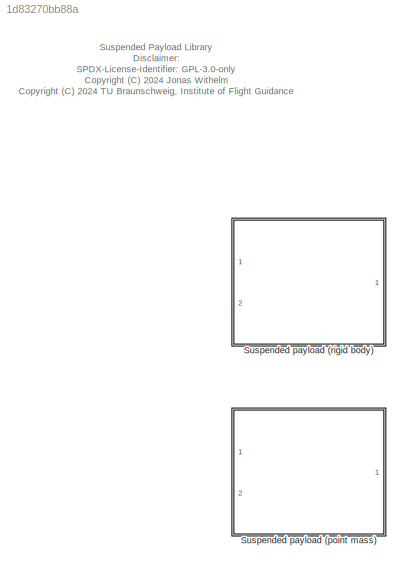
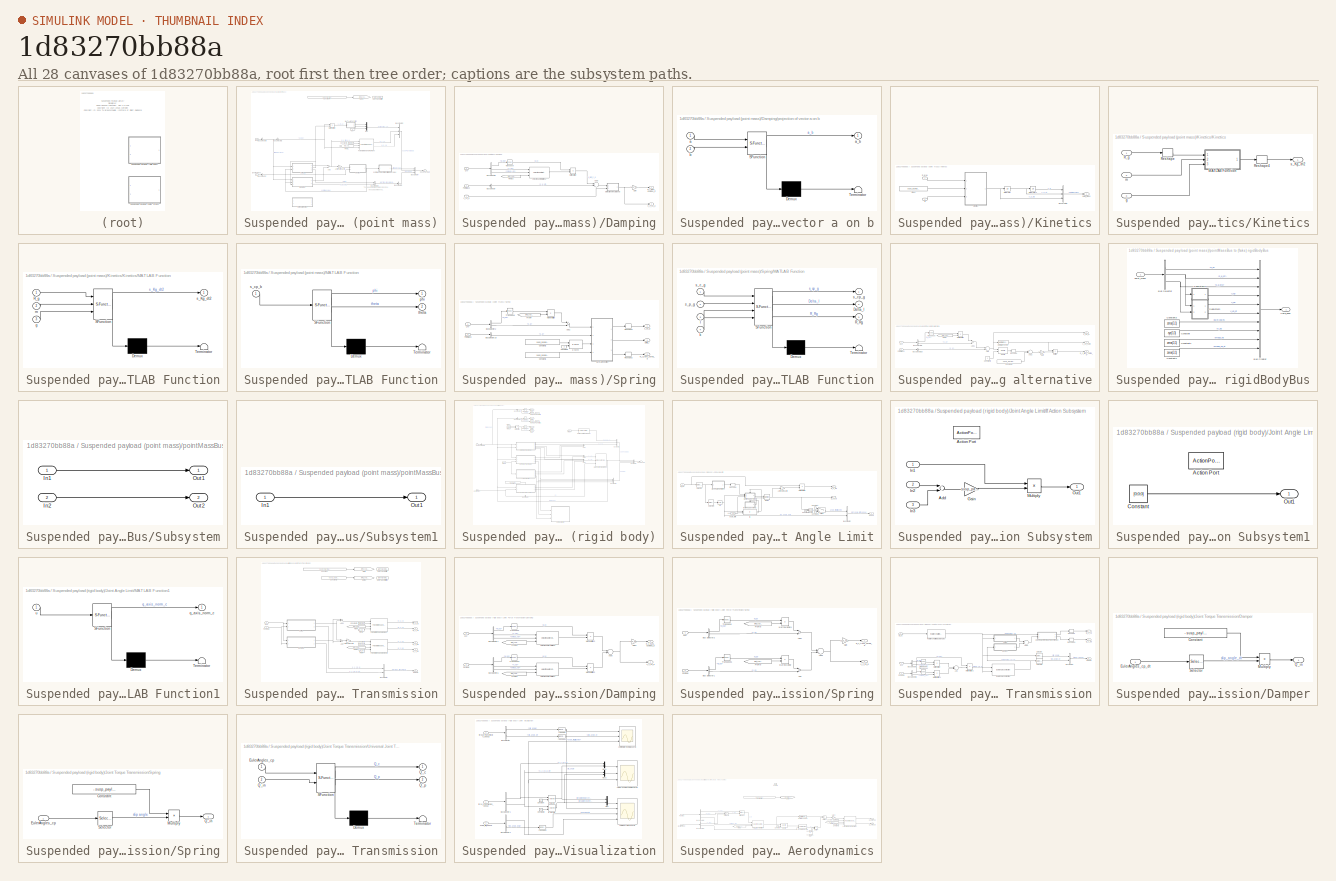
[diagram: thumbnail index - all 28 canvases of the model, root first then tree order]
MODEL slx_1d83270bb88a
KIND library
CONFIG AbsTol = auto
CONFIG EnableMultiTasking = off
CONFIG FixedStep = auto
CONFIG MaxStep = auto
CONFIG MinStep = auto
CONFIG RelTol = 1e-3
CONFIG SampleTimeConstraint = Unconstrained
CONFIG Solver = VariableStepAuto
CONFIG SolverName = VariableStepAuto
CONFIG StartTime = 0.0
CONFIG StopTime = 10.0
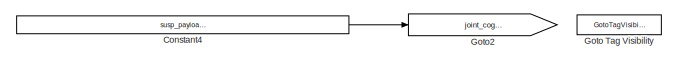
[diagram: Suspended payload (point mass) - part 1/3, top center region]
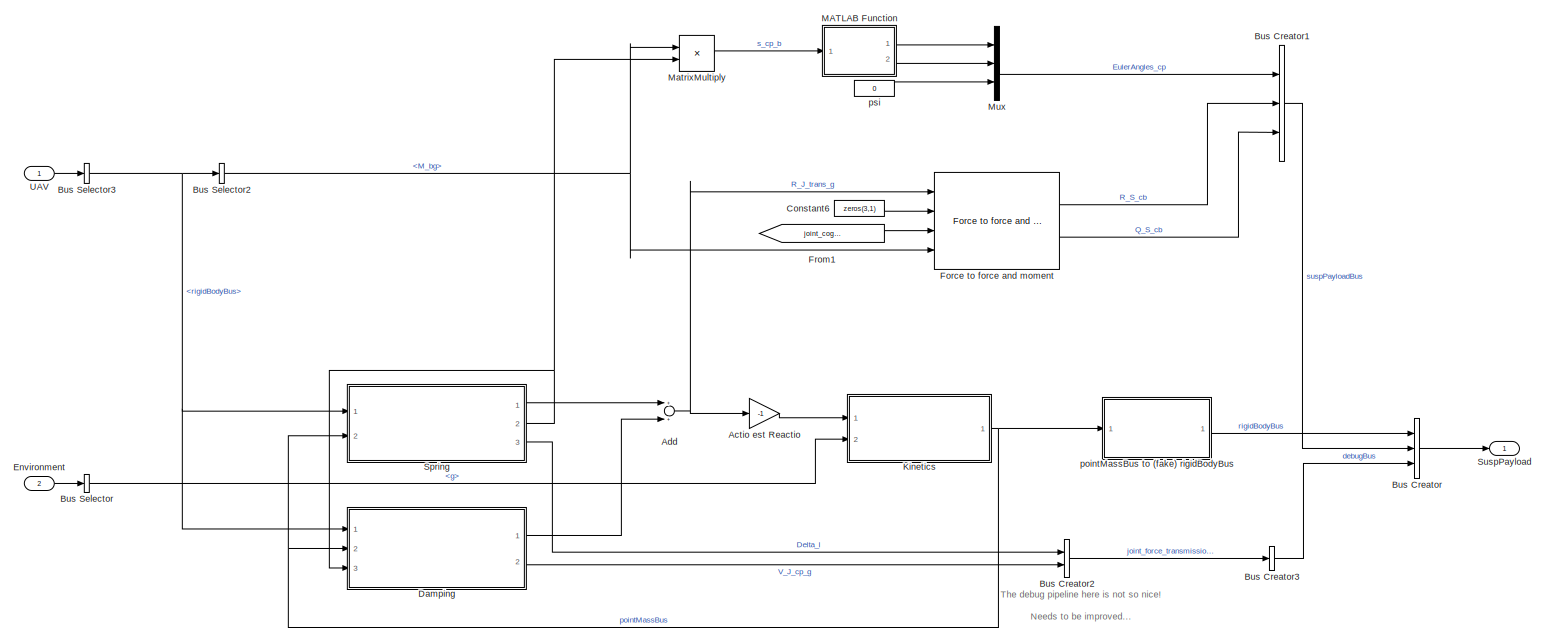
[diagram: Suspended payload (point mass) - part 2/3, full width, middle band]
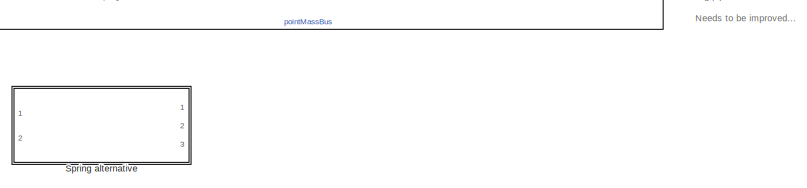
[diagram: Suspended payload (point mass) - part 3/3, bottom center region]
BLOCK [SubSystem] Suspended payload (point mass)
  Ports = [2, 1]
  RequestExecContextInheritance = off
BLOCK [Gain] Suspended payload (point mass)/Actio est Reactio
  Gain = -1
  OutDataTypeStr = Inherit: Inherit via internal rule
  ParamDataTypeStr = Inherit: Inherit via internal rule
  SaturateOnIntegerOverflow = off
BLOCK [Sum] Suspended payload (point mass)/Add
  InputSameDT = off
  OutDataTypeStr = Inherit: Inherit via internal rule
  Ports = [2, 1]
  SaturateOnIntegerOverflow = off
BLOCK [BusCreator] Suspended payload (point mass)/Bus Creator
  DisplayOption = bar
  InheritFromInputs = on
  Inputs = 3
  Ports = [3, 1]
BLOCK [BusCreator] Suspended payload (point mass)/Bus Creator1
  DisplayOption = bar
  InheritFromInputs = on
  Inputs = 3
  Ports = [3, 1]
BLOCK [BusCreator] Suspended payload (point mass)/Bus Creator2
  DisplayOption = bar
  InheritFromInputs = on
  Inputs = 2
  Ports = [2, 1]
BLOCK [BusCreator] Suspended payload (point mass)/Bus Creator3
  DisplayOption = bar
  InheritFromInputs = on
  Inputs = 1
  Ports = [1, 1]
BLOCK [BusSelector] Suspended payload (point mass)/Bus Selector
  OutputAsBus = off
  OutputSignals = g
  Ports = [1, 1]
BLOCK [BusSelector] Suspended payload (point mass)/Bus Selector2
  OutputAsBus = off
  OutputSignals = M_bg
  Ports = [1, 1]
BLOCK [BusSelector] Suspended payload (point mass)/Bus Selector3
  OutputAsBus = off
  OutputSignals = rigidBodyBus
  Ports = [1, 1]
BLOCK [Constant] Suspended payload (point mass)/Constant4
  Value = susp_payload_.joint.joint_pos_uav_c - uav_.config.CoG_Pos_c
BLOCK [Constant] Suspended payload (point mass)/Constant6
  Value = zeros(3,1)
BLOCK [SubSystem] Suspended payload (point mass)/Damping
  Ports = [3, 2]
  RequestExecContextInheritance = off
BLOCK [Sum] Suspended payload (point mass)/Damping/Add6
  InputSameDT = off
  Inputs = -+
  OutDataTypeStr = Inherit: Inherit via internal rule
  Ports = [2, 1]
  SaturateOnIntegerOverflow = off
BLOCK [BusSelector] Suspended payload (point mass)/Damping/Bus Selector
  OutputAsBus = off
  OutputSignals = s_g_dt
  Ports = [1, 1]
BLOCK [BusSelector] Suspended payload (point mass)/Damping/Bus Selector7
  OutputAsBus = off
  OutputSignals = M_bg,V_Kb,omega_Kb
  Ports = [1, 3]
BLOCK [From] Suspended payload (point mass)/Damping/From16
  GotoTag = joint_cog_offset_c
  TagVisibility = global
BLOCK [Gain] Suspended payload (point mass)/Damping/Gain
  Gain = susp_payload_.joint.trans_damping
  OutDataTypeStr = Inherit: Inherit via internal rule
  ParamDataTypeStr = Inherit: Inherit via internal rule
  SaturateOnIntegerOverflow = off
BLOCK [Product] Suspended payload (point mass)/Damping/MatrixMultiply
  InputSameDT = off
  Multiplication = Matrix(*)
  OutDataTypeStr = Inherit: Inherit via internal rule
  Ports = [2, 1]
  RndMeth = Floor
  SaturateOnIntegerOverflow = off
BLOCK [Inport] Suspended payload (point mass)/Damping/Point Mass
  IconDisplay = Port number
  Port = 2
BLOCK [Outport] Suspended payload (point mass)/Damping/R_J_trans_damping_g
  IconDisplay = Port number
BLOCK [Math] Suspended payload (point mass)/Damping/Transpose
  Operator = transpose
  Ports = [1, 1]
BLOCK [Inport] Suspended payload (point mass)/Damping/UAV
  IconDisplay = Port number
BLOCK [Outport] Suspended payload (point mass)/Damping/V_J_cp_g
  IconDisplay = Port number
  Port = 2
BLOCK [Reference] Suspended payload (point mass)/Damping/Velocity due to rotation2  REF=axes_transformation_lib/Velocity due to rotation  (lib defined in slx_69e2413c78c0)
  Ports = [3, 1]
  SourceBlock = axes_transformation_lib/Velocity due to rotation
  SourceProductName = LADAC
  SourceType = SubSystem
BLOCK [SubSystem] Suspended payload (point mass)/Damping/projection of vector a on b
  ErrorFcn = Stateflow.Translate.translate
  PermitHierarchicalResolution = ExplicitOnly
  Ports = [2, 1]
  RequestExecContextInheritance = off
  SFBlockType = MATLAB Function
  TreatAsAtomicUnit = on
BLOCK [Demux] Suspended payload (point mass)/Damping/projection of vector a on b/ Demux 
  Outputs = 1
  Ports = [1, 1]
BLOCK [S-Function] Suspended payload (point mass)/Damping/projection of vector a on b/ SFunction 
  EnableBusSupport = on
  FunctionName = sf_sfun
  PortCounts = [2 2]
  Ports = [2, 2]
  SFcnIsStateOwnerBlock = off
  SFunctionDeploymentMode = off
  Tag = Stateflow S-Function suspended_payload_lib 5
BLOCK [Terminator] Suspended payload (point mass)/Damping/projection of vector a on b/ Terminator 
BLOCK [Inport] Suspended payload (point mass)/Damping/projection of vector a on b/a
  IconDisplay = Port number
BLOCK [Outport] Suspended payload (point mass)/Damping/projection of vector a on b/a_b
  IconDisplay = Port number
BLOCK [Inport] Suspended payload (point mass)/Damping/projection of vector a on b/b
  IconDisplay = Port number
  Port = 2
BLOCK [Inport] Suspended payload (point mass)/Damping/s_cp_g
  IconDisplay = Port number
  Port = 3
BLOCK [Inport] Suspended payload (point mass)/Environment
  IconDisplay = Port number
  Port = 2
BLOCK [Reference] Suspended payload (point mass)/Force to force and moment  REF=axes_transformation_lib/Force to force and moment  (lib defined in slx_69e2413c78c0)
  Ports = [4, 2]
  SourceBlock = axes_transformation_lib/Force to force and moment
  SourceProductName = LADAC
  SourceType = SubSystem
BLOCK [From] Suspended payload (point mass)/From1
  GotoTag = joint_cog_offset_c
  TagVisibility = global
BLOCK [GotoTagVisibility] Suspended payload (point mass)/Goto Tag Visibility
  GotoTag = joint_cog_offset_c
BLOCK [Goto] Suspended payload (point mass)/Goto2
  GotoTag = joint_cog_offset_c
  TagVisibility = scoped
BLOCK [SubSystem] Suspended payload (point mass)/Kinetics
  Ports = [2, 1]
  RequestExecContextInheritance = off
BLOCK [BusCreator] Suspended payload (point mass)/Kinetics/Bus Creator
  DisplayOption = bar
  InheritFromInputs = on
  Inputs = 3
  Ports = [3, 1]
BLOCK [Integrator] Suspended payload (point mass)/Kinetics/Integrator
  ContinuousStateAttributes = 'velocity_pld'
  InitialCondition = IC_sp_.V_Kg
  Ports = [1, 1]
BLOCK [Integrator] Suspended payload (point mass)/Kinetics/Integrator1
  ContinuousStateAttributes = 'position_pld'
  InitialCondition = IC_sp_.s_g
  Ports = [1, 1]
BLOCK [SubSystem] Suspended payload (point mass)/Kinetics/Kinetics
  Ports = [3, 1]
  RequestExecContextInheritance = off
BLOCK [SubSystem] Suspended payload (point mass)/Kinetics/Kinetics/MATLAB Function
  ErrorFcn = Stateflow.Translate.translate
  PermitHierarchicalResolution = ExplicitOnly
  Ports = [3, 1]
  RequestExecContextInheritance = off
  SFBlockType = MATLAB Function
  TreatAsAtomicUnit = on
BLOCK [Demux] Suspended payload (point mass)/Kinetics/Kinetics/MATLAB Function/ Demux 
  Outputs = 1
  Ports = [1, 1]
BLOCK [S-Function] Suspended payload (point mass)/Kinetics/Kinetics/MATLAB Function/ SFunction 
  EnableBusSupport = on
  FunctionName = sf_sfun
  PortCounts = [3 2]
  Ports = [3, 2]
  SFcnIsStateOwnerBlock = off
  SFunctionDeploymentMode = off
  Tag = Stateflow S-Function suspended_payload_lib 6
BLOCK [Terminator] Suspended payload (point mass)/Kinetics/Kinetics/MATLAB Function/ Terminator 
BLOCK [Inport] Suspended payload (point mass)/Kinetics/Kinetics/MATLAB Function/R_g
  IconDisplay = Port number
BLOCK [Inport] Suspended payload (point mass)/Kinetics/Kinetics/MATLAB Function/g
  IconDisplay = Port number
  Port = 3
BLOCK [Inport] Suspended payload (point mass)/Kinetics/Kinetics/MATLAB Function/m
  IconDisplay = Port number
  Port = 2
BLOCK [Outport] Suspended payload (point mass)/Kinetics/Kinetics/MATLAB Function/s_Kg_dt2
  IconDisplay = Port number
BLOCK [Inport] Suspended payload (point mass)/Kinetics/Kinetics/R_g
  IconDisplay = Port number
BLOCK [Reshape] Suspended payload (point mass)/Kinetics/Kinetics/Reshape
  OutputDimensionality = Column vector (2-D)
  Ports = [1, 1]
BLOCK [Reshape] Suspended payload (point mass)/Kinetics/Kinetics/Reshape4
  OutputDimensionality = Column vector (2-D)
  Ports = [1, 1]
BLOCK [Inport] Suspended payload (point mass)/Kinetics/Kinetics/g
  IconDisplay = Port number
  Port = 3
BLOCK [Inport] Suspended payload (point mass)/Kinetics/Kinetics/m
  IconDisplay = Port number
  Port = 2
BLOCK [Outport] Suspended payload (point mass)/Kinetics/Kinetics/s_Kg_dt2
  IconDisplay = Port number
BLOCK [Inport] Suspended payload (point mass)/Kinetics/R_g (N)
  IconDisplay = Port number
BLOCK [Inport] Suspended payload (point mass)/Kinetics/g
  IconDisplay = Port number
  Port = 2
BLOCK [Constant] Suspended payload (point mass)/Kinetics/mass
  Value = susp_payload_.body.m
BLOCK [Outport] Suspended payload (point mass)/Kinetics/point_mass
  IconDisplay = Port number
BLOCK [SubSystem] Suspended payload (point mass)/MATLAB Function
  ErrorFcn = Stateflow.Translate.translate
  PermitHierarchicalResolution = ExplicitOnly
  Ports = [1, 2]
  RequestExecContextInheritance = off
  SFBlockType = MATLAB Function
  TreatAsAtomicUnit = on
BLOCK [Demux] Suspended payload (point mass)/MATLAB Function/ Demux 
  Outputs = 1
  Ports = [1, 1]
BLOCK [S-Function] Suspended payload (point mass)/MATLAB Function/ SFunction 
  EnableBusSupport = on
  FunctionName = sf_sfun
  PortCounts = [1 3]
  Ports = [1, 3]
  SFcnIsStateOwnerBlock = off
  SFunctionDeploymentMode = off
  Tag = Stateflow S-Function suspended_payload_lib 7
BLOCK [Terminator] Suspended payload (point mass)/MATLAB Function/ Terminator 
BLOCK [Outport] Suspended payload (point mass)/MATLAB Function/phi
  IconDisplay = Port number
BLOCK [Inport] Suspended payload (point mass)/MATLAB Function/s_cp_b
  IconDisplay = Port number
BLOCK [Outport] Suspended payload (point mass)/MATLAB Function/theta
  IconDisplay = Port number
  Port = 2
BLOCK [Product] Suspended payload (point mass)/MatrixMultiply
  InputSameDT = off
  Multiplication = Matrix(*)
  OutDataTypeStr = Inherit: Inherit via internal rule
  Ports = [2, 1]
  RndMeth = Floor
  SaturateOnIntegerOverflow = off
BLOCK [Mux] Suspended payload (point mass)/Mux
  DisplayOption = bar
  Inputs = 3
  Ports = [3, 1]
BLOCK [SubSystem] Suspended payload (point mass)/Spring
  Ports = [2, 3]
  RequestExecContextInheritance = off
BLOCK [SubSystem] Suspended payload (point mass)/Spring alternative
  Commented = on
  Ports = [2, 3]
  RequestExecContextInheritance = off
BLOCK [Sum] Suspended payload (point mass)/Spring alternative/Add
  InputSameDT = off
  Inputs = -+
  OutDataTypeStr = Inherit: Inherit via internal rule
  Ports = [2, 1]
  SaturateOnIntegerOverflow = off
BLOCK [Sum] Suspended payload (point mass)/Spring alternative/Add1
  InputSameDT = off
  OutDataTypeStr = Inherit: Inherit via internal rule
  Ports = [2, 1]
  SaturateOnIntegerOverflow = off
BLOCK [Sum] Suspended payload (point mass)/Spring alternative/Add2
  InputSameDT = off
  Inputs = +-
  OutDataTypeStr = Inherit: Inherit via internal rule
  Ports = [2, 1]
  SaturateOnIntegerOverflow = off
BLOCK [BusSelector] Suspended payload (point mass)/Spring alternative/Bus Selector18
  OutputAsBus = off
  OutputSignals = s_g
  Ports = [1, 1]
BLOCK [BusSelector] Suspended payload (point mass)/Spring alternative/Bus Selector2
  OutputAsBus = off
  OutputSignals = M_bg,s_g
  Ports = [1, 2]
BLOCK [Constant] Suspended payload (point mass)/Spring alternative/Constant3
  Value = 2
BLOCK [Constant] Suspended payload (point mass)/Spring alternative/Constant4
  Value = susp_payload_.point_mass.length
BLOCK [From] Suspended payload (point mass)/Spring alternative/From7
  GotoTag = joint_cog_offset_c
  TagVisibility = global
BLOCK [Gain] Suspended payload (point mass)/Spring alternative/Gain
  Gain = susp_payload_.joint.trans_stiffness
  OutDataTypeStr = Inherit: Inherit via internal rule
  ParamDataTypeStr = Inherit: Inherit via internal rule
  SaturateOnIntegerOverflow = off
BLOCK [Product] Suspended payload (point mass)/Spring alternative/MatrixMultiply
  InputSameDT = off
  Multiplication = Matrix(*)
  OutDataTypeStr = Inherit: Inherit via internal rule
  Ports = [2, 1]
  RndMeth = Floor
  SaturateOnIntegerOverflow = off
BLOCK [Product] Suspended payload (point mass)/Spring alternative/Multiply
  InputSameDT = off
  OutDataTypeStr = Inherit: Inherit via internal rule
  Ports = [2, 1]
  RndMeth = Floor
  SaturateOnIntegerOverflow = off
BLOCK [Reference] Suspended payload (point mass)/Spring alternative/Normalize Vector  REF=vrlib/Utilities/Normalize Vector
  Ports = [1, 1]
  SourceBlock = vrlib/Utilities/Normalize Vector
  SourceProductBaseCode = VR
  SourceProductName = Simulink 3D Animation
  SourceType = Normalize Vector
BLOCK [Inport] Suspended payload (point mass)/Spring alternative/Point Mass
  IconDisplay = Port number
  Port = 2
BLOCK [Outport] Suspended payload (point mass)/Spring alternative/R_J_trans_spring_g
  IconDisplay = Port number
BLOCK [Reshape] Suspended payload (point mass)/Spring alternative/Reshape
  OutputDimensionality = Column vector (2-D)
  Ports = [1, 1]
BLOCK [Math] Suspended payload (point mass)/Spring alternative/Transpose
  Operator = transpose
  Ports = [1, 1]
BLOCK [Inport] Suspended payload (point mass)/Spring alternative/UAV
  IconDisplay = Port number
BLOCK [Reference] Suspended payload (point mass)/Spring alternative/p-norm  REF=flight_parameters_lib/p-norm  (lib defined in slx_01e6108afe6f)
  Ports = [2, 1]
  SourceBlock = flight_parameters_lib/p-norm
  SourceProductName = LADAC
  SourceType = SubSystem
BLOCK [Outport] Suspended payload (point mass)/Spring alternative/s_cp_g
  IconDisplay = Port number
  Port = 2
BLOCK [Outport] Suspended payload (point mass)/Spring alternative/s_cp_norm
  IconDisplay = Port number
  Port = 3
BLOCK [Sum] Suspended payload (point mass)/Spring/Add1
  InputSameDT = off
  OutDataTypeStr = Inherit: Inherit via internal rule
  Ports = [2, 1]
  SaturateOnIntegerOverflow = off
BLOCK [BusSelector] Suspended payload (point mass)/Spring/Bus Selector18
  OutputAsBus = off
  OutputSignals = s_g
  Ports = [1, 1]
BLOCK [BusSelector] Suspended payload (point mass)/Spring/Bus Selector2
  OutputAsBus = off
  OutputSignals = M_bg,s_g
  Ports = [1, 2]
BLOCK [Constant] Suspended payload (point mass)/Spring/Constant1
  Value = susp_payload_.joint.trans_stiffness
BLOCK [Constant] Suspended payload (point mass)/Spring/Constant2
  Value = susp_payload_.config.CoG_Pos_c
BLOCK [Constant] Suspended payload (point mass)/Spring/Constant3
  Value = 2
BLOCK [Outport] Suspended payload (point mass)/Spring/Delta_l
  IconDisplay = Port number
  Port = 3
BLOCK [From] Suspended payload (point mass)/Spring/From7
  GotoTag = joint_cog_offset_c
  TagVisibility = global
BLOCK [SubSystem] Suspended payload (point mass)/Spring/MATLAB Function
  ErrorFcn = Stateflow.Translate.translate
  PermitHierarchicalResolution = ExplicitOnly
  Ports = [4, 3]
  RequestExecContextInheritance = off
  SFBlockType = MATLAB Function
  TreatAsAtomicUnit = on
BLOCK [Demux] Suspended payload (point mass)/Spring/MATLAB Function/ Demux 
  Outputs = 1
  Ports = [1, 1]
BLOCK [S-Function] Suspended payload (point mass)/Spring/MATLAB Function/ SFunction 
  EnableBusSupport = on
  FunctionName = sf_sfun
  PortCounts = [4 4]
  Ports = [4, 4]
  SFcnIsStateOwnerBlock = off
  SFunctionDeploymentMode = off
  Tag = Stateflow S-Function suspended_payload_lib 10
BLOCK [Terminator] Suspended payload (point mass)/Spring/MATLAB Function/ Terminator 
BLOCK [Outport] Suspended payload (point mass)/Spring/MATLAB Function/Delta_l
  IconDisplay = Port number
  Port = 2
BLOCK [Outport] Suspended payload (point mass)/Spring/MATLAB Function/R_Rg
  IconDisplay = Port number
  Port = 3
BLOCK [Inport] Suspended payload (point mass)/Spring/MATLAB Function/k
  IconDisplay = Port number
  Port = 4
BLOCK [Inport] Suspended payload (point mass)/Spring/MATLAB Function/l
  IconDisplay = Port number
  Port = 3
BLOCK [Inport] Suspended payload (point mass)/Spring/MATLAB Function/s_c_g
  IconDisplay = Port number
BLOCK [Outport] Suspended payload (point mass)/Spring/MATLAB Function/s_cp_g
  IconDisplay = Port number
BLOCK [Inport] Suspended payload (point mass)/Spring/MATLAB Function/s_p_g
  IconDisplay = Port number
  Port = 2
BLOCK [Product] Suspended payload (point mass)/Spring/MatrixMultiply
  InputSameDT = off
  Multiplication = Matrix(*)
  OutDataTypeStr = Inherit: Inherit via internal rule
  Ports = [2, 1]
  RndMeth = Floor
  SaturateOnIntegerOverflow = off
BLOCK [Inport] Suspended payload (point mass)/Spring/Point Mass
  IconDisplay = Port number
  Port = 2
BLOCK [Outport] Suspended payload (point mass)/Spring/R_J_trans_spring_g
  IconDisplay = Port number
BLOCK [Reshape] Suspended payload (point mass)/Spring/Reshape2
  OutputDimensionality = Column vector (2-D)
  Ports = [1, 1]
BLOCK [Reshape] Suspended payload (point mass)/Spring/Reshape3
  OutputDimensionality = Column vector (2-D)
  Ports = [1, 1]
BLOCK [Math] Suspended payload (point mass)/Spring/Transpose
  Operator = transpose
  Ports = [1, 1]
BLOCK [Inport] Suspended payload (point mass)/Spring/UAV
  IconDisplay = Port number
BLOCK [Reference] Suspended payload (point mass)/Spring/p-norm  REF=flight_parameters_lib/p-norm  (lib defined in slx_01e6108afe6f)
  Ports = [2, 1]
  SourceBlock = flight_parameters_lib/p-norm
  SourceProductName = LADAC
  SourceType = SubSystem
BLOCK [Outport] Suspended payload (point mass)/Spring/s_cp_g
  IconDisplay = Port number
  Port = 2
BLOCK [Outport] Suspended payload (point mass)/SuspPayload
  IconDisplay = Port number
BLOCK [Inport] Suspended payload (point mass)/UAV
  IconDisplay = Port number
BLOCK [SubSystem] Suspended payload (point mass)/pointMassBus to (fake) rigidBodyBus
  Ports = [1, 1]
  RequestExecContextInheritance = off
BLOCK [BusCreator] Suspended payload (point mass)/pointMassBus to (fake) rigidBodyBus/Bus Creator
  DisplayOption = bar
  InheritFromInputs = on
  Inputs = 10
  Ports = [10, 1]
BLOCK [BusSelector] Suspended payload (point mass)/pointMassBus to (fake) rigidBodyBus/Bus Selector
  OutputAsBus = off
  OutputSignals = s_g,s_g_dt,s_g_dt2
  Ports = [1, 3]
BLOCK [Constant] Suspended payload (point mass)/pointMassBus to (fake) rigidBodyBus/Constant
  Value = eye(3,3)
BLOCK [Constant] Suspended payload (point mass)/pointMassBus to (fake) rigidBodyBus/Constant1
  Value = zeros(3,1)
BLOCK [Constant] Suspended payload (point mass)/pointMassBus to (fake) rigidBodyBus/Constant2
  Value = zeros(3,1)
BLOCK [Constant] Suspended payload (point mass)/pointMassBus to (fake) rigidBodyBus/Constant3
  Value = zeros(3,1)
BLOCK [SubSystem] Suspended payload (point mass)/pointMassBus to (fake) rigidBodyBus/Subsystem
  Ports = [2, 2]
  RequestExecContextInheritance = off
BLOCK [Inport] Suspended payload (point mass)/pointMassBus to (fake) rigidBodyBus/Subsystem/In1
  IconDisplay = Port number
BLOCK [Inport] Suspended payload (point mass)/pointMassBus to (fake) rigidBodyBus/Subsystem/In2
  IconDisplay = Port number
  Port = 2
BLOCK [Outport] Suspended payload (point mass)/pointMassBus to (fake) rigidBodyBus/Subsystem/Out1
  IconDisplay = Port number
BLOCK [Outport] Suspended payload (point mass)/pointMassBus to (fake) rigidBodyBus/Subsystem/Out2
  IconDisplay = Port number
  Port = 2
BLOCK [SubSystem] Suspended payload (point mass)/pointMassBus to (fake) rigidBodyBus/Subsystem1
  Ports = [1, 1]
  RequestExecContextInheritance = off
BLOCK [Inport] Suspended payload (point mass)/pointMassBus to (fake) rigidBodyBus/Subsystem1/In1
  IconDisplay = Port number
BLOCK [Outport] Suspended payload (point mass)/pointMassBus to (fake) rigidBodyBus/Subsystem1/Out1
  IconDisplay = Port number
BLOCK [Inport] Suspended payload (point mass)/pointMassBus to (fake) rigidBodyBus/point_mass
  IconDisplay = Port number
BLOCK [Outport] Suspended payload (point mass)/pointMassBus to (fake) rigidBodyBus/rigid_body
  IconDisplay = Port number
BLOCK [Constant] Suspended payload (point mass)/psi
  Value = 0
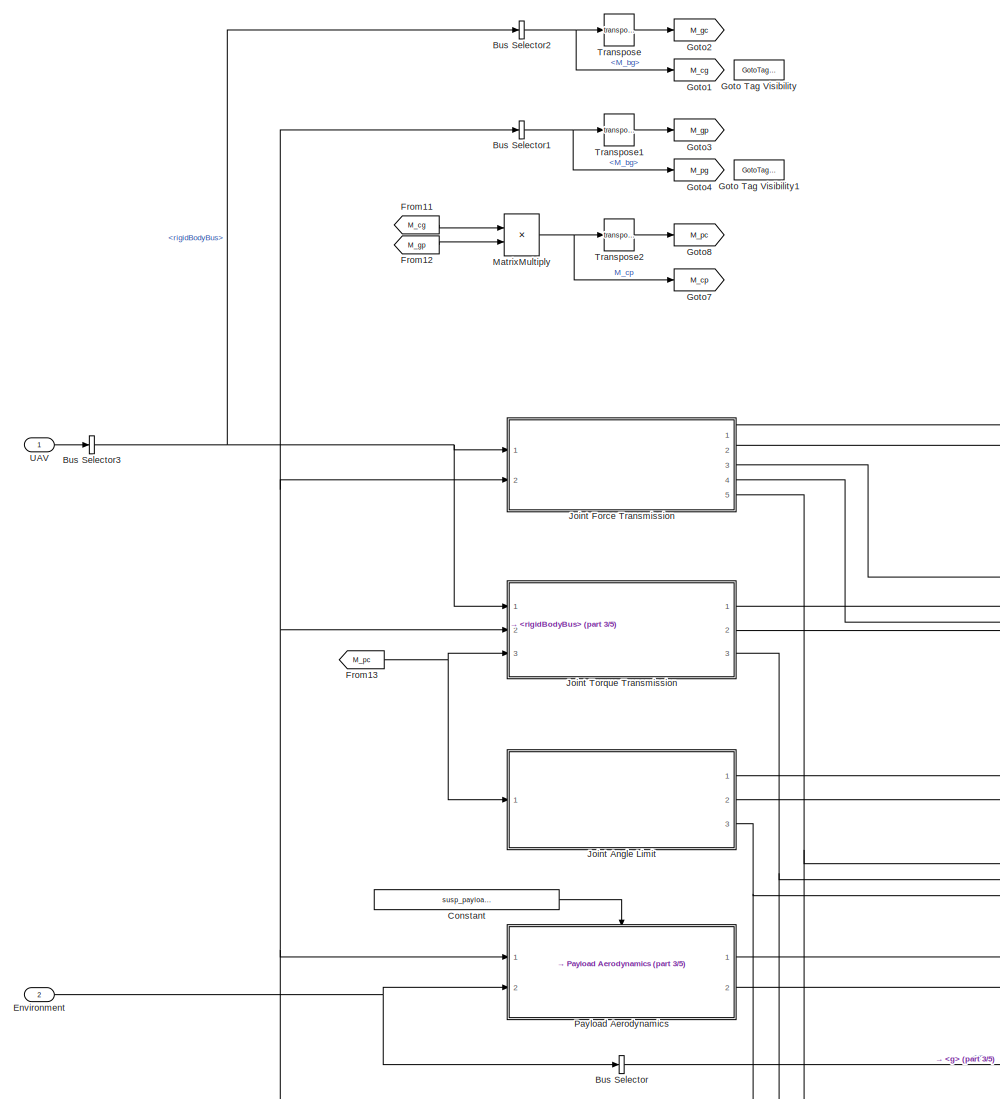
[diagram: Suspended payload (rigid body) - part 1/5, left side, full height]
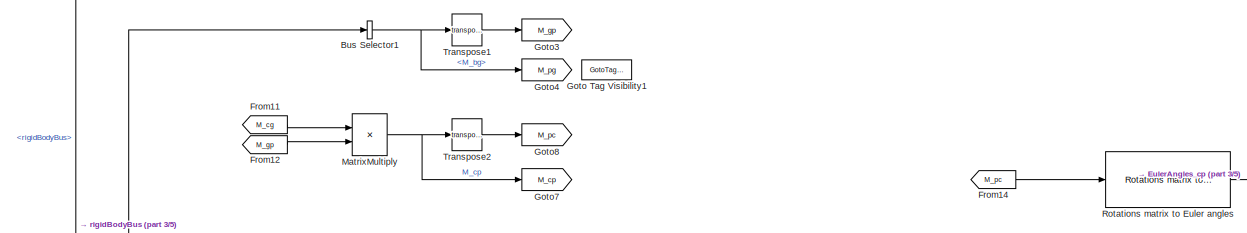
[diagram: Suspended payload (rigid body) - part 2/5, top center region]
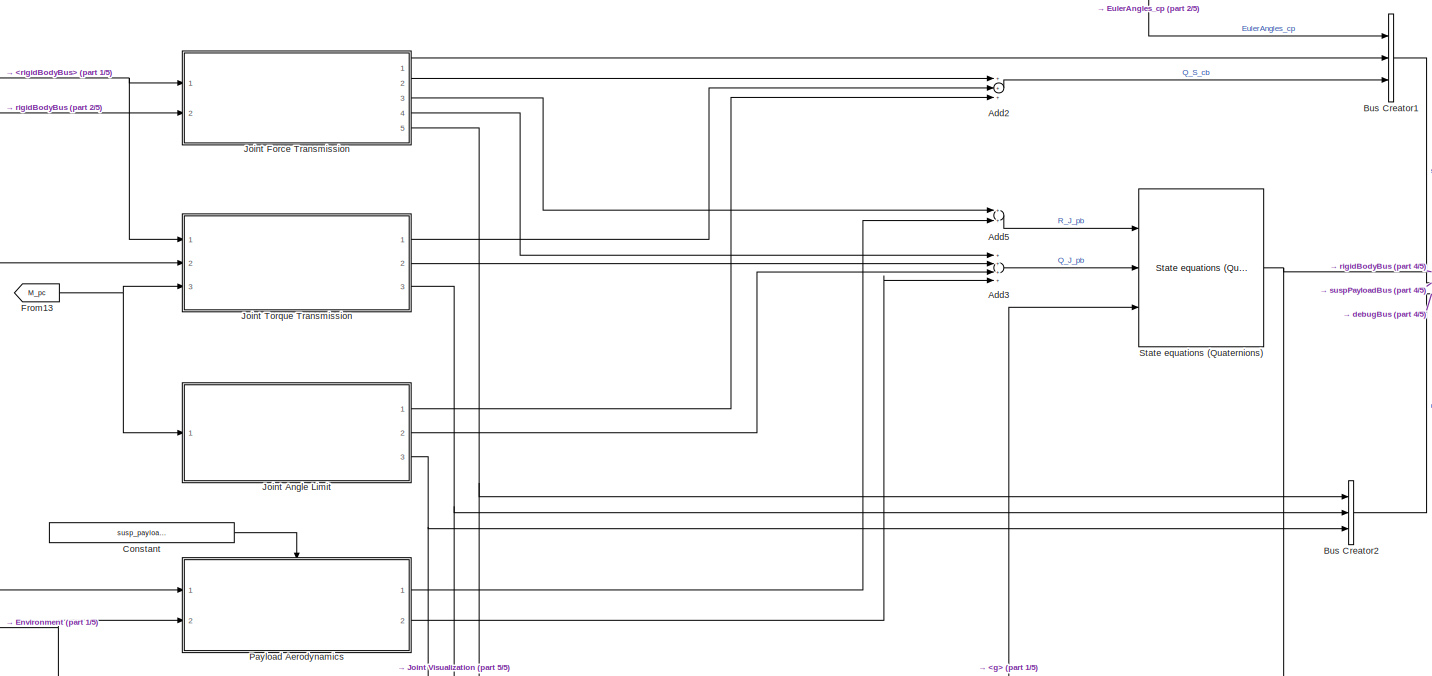
[diagram: Suspended payload (rigid body) - part 3/5, central region]
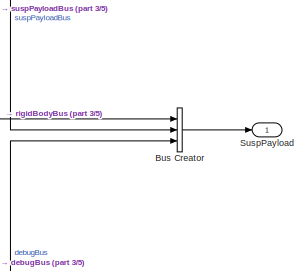
[diagram: Suspended payload (rigid body) - part 4/5, middle right region]
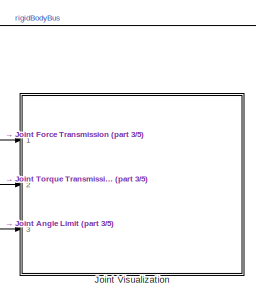
[diagram: Suspended payload (rigid body) - part 5/5, bottom center region]
BLOCK [SubSystem] Suspended payload (rigid body)
  Ports = [2, 1]
  RequestExecContextInheritance = off
BLOCK [Sum] Suspended payload (rigid body)/Add2
  InputSameDT = off
  Inputs = +++
  OutDataTypeStr = Inherit: Inherit via internal rule
  Ports = [3, 1]
  SaturateOnIntegerOverflow = off
BLOCK [Sum] Suspended payload (rigid body)/Add3
  InputSameDT = off
  Inputs = ++++
  OutDataTypeStr = Inherit: Inherit via internal rule
  Ports = [4, 1]
  SaturateOnIntegerOverflow = off
BLOCK [Sum] Suspended payload (rigid body)/Add5
  InputSameDT = off
  OutDataTypeStr = Inherit: Inherit via internal rule
  Ports = [2, 1]
  SaturateOnIntegerOverflow = off
BLOCK [BusCreator] Suspended payload (rigid body)/Bus Creator
  DisplayOption = bar
  InheritFromInputs = on
  Inputs = 3
  Ports = [3, 1]
BLOCK [BusCreator] Suspended payload (rigid body)/Bus Creator1
  DisplayOption = bar
  InheritFromInputs = on
  Inputs = 3
  Ports = [3, 1]
BLOCK [BusCreator] Suspended payload (rigid body)/Bus Creator2
  DisplayOption = bar
  InheritFromInputs = on
  Inputs = 3
  Ports = [3, 1]
BLOCK [BusSelector] Suspended payload (rigid body)/Bus Selector
  OutputAsBus = off
  OutputSignals = g
  Ports = [1, 1]
BLOCK [BusSelector] Suspended payload (rigid body)/Bus Selector1
  OutputAsBus = off
  OutputSignals = M_bg
  Ports = [1, 1]
BLOCK [BusSelector] Suspended payload (rigid body)/Bus Selector2
  OutputAsBus = off
  OutputSignals = M_bg
  Ports = [1, 1]
BLOCK [BusSelector] Suspended payload (rigid body)/Bus Selector3
  OutputAsBus = off
  OutputSignals = rigidBodyBus
  Ports = [1, 1]
BLOCK [Constant] Suspended payload (rigid body)/Constant
  Value = susp_payload_.payload.aero.enable
BLOCK [Inport] Suspended payload (rigid body)/Environment
  IconDisplay = Port number
  Port = 2
BLOCK [From] Suspended payload (rigid body)/From11
  GotoTag = M_cg
  TagVisibility = scoped
BLOCK [From] Suspended payload (rigid body)/From12
  GotoTag = M_gp
BLOCK [From] Suspended payload (rigid body)/From13
  GotoTag = M_pc
BLOCK [From] Suspended payload (rigid body)/From14
  GotoTag = M_pc
BLOCK [GotoTagVisibility] Suspended payload (rigid body)/Goto Tag Visibility
  GotoTag = M_cg
BLOCK [GotoTagVisibility] Suspended payload (rigid body)/Goto Tag Visibility1
  GotoTag = M_pg
BLOCK [Goto] Suspended payload (rigid body)/Goto1
  GotoTag = M_cg
  TagVisibility = scoped
BLOCK [Goto] Suspended payload (rigid body)/Goto2
  GotoTag = M_gc
BLOCK [Goto] Suspended payload (rigid body)/Goto3
  GotoTag = M_gp
BLOCK [Goto] Suspended payload (rigid body)/Goto4
  GotoTag = M_pg
  TagVisibility = scoped
BLOCK [Goto] Suspended payload (rigid body)/Goto7
  GotoTag = M_cp
BLOCK [Goto] Suspended payload (rigid body)/Goto8
  GotoTag = M_pc
BLOCK [SubSystem] Suspended payload (rigid body)/Joint Angle Limit
  Ports = [1, 3]
  RequestExecContextInheritance = off
BLOCK [Gain] Suspended payload (rigid body)/Joint Angle Limit/Actio est Reactio
  Gain = -1
  OutDataTypeStr = Inherit: Inherit via internal rule
  ParamDataTypeStr = Inherit: Inherit via internal rule
  SaturateOnIntegerOverflow = off
BLOCK [BusCreator] Suspended payload (rigid body)/Joint Angle Limit/Bus Creator
  DisplayOption = bar
  InheritFromInputs = on
  Inputs = 2
  Ports = [2, 1]
BLOCK [Constant] Suspended payload (rigid body)/Joint Angle Limit/Constant
BLOCK [Constant] Suspended payload (rigid body)/Joint Angle Limit/Constant1
  Value = 0
BLOCK [Constant] Suspended payload (rigid body)/Joint Angle Limit/Constant2
  Value = 2
BLOCK [SubSystem] Suspended payload (rigid body)/Joint Angle Limit/If Action Subsystem
  Ports = [3, 1, 0, 0, 0, 0, 0, 1]
  RequestExecContextInheritance = off
  TreatAsAtomicUnit = on
BLOCK [ActionPort] Suspended payload (rigid body)/Joint Angle Limit/If Action Subsystem/Action Port
  InitializeStates = reset
BLOCK [Sum] Suspended payload (rigid body)/Joint Angle Limit/If Action Subsystem/Add
  InputSameDT = off
  Inputs = +-
  OutDataTypeStr = Inherit: Inherit via internal rule
  Ports = [2, 1]
  SaturateOnIntegerOverflow = off
BLOCK [Gain] Suspended payload (rigid body)/Joint Angle Limit/If Action Subsystem/Gain
  Gain = susp_payload_.joint.angle_limit_stiffness
  OutDataTypeStr = Inherit: Inherit via internal rule
  ParamDataTypeStr = Inherit: Inherit via internal rule
  SaturateOnIntegerOverflow = off
BLOCK [Inport] Suspended payload (rigid body)/Joint Angle Limit/If Action Subsystem/In1
  IconDisplay = Port number
BLOCK [Inport] Suspended payload (rigid body)/Joint Angle Limit/If Action Subsystem/In2
  IconDisplay = Port number
  Port = 2
BLOCK [Inport] Suspended payload (rigid body)/Joint Angle Limit/If Action Subsystem/In3
  IconDisplay = Port number
  Port = 3
BLOCK [Product] Suspended payload (rigid body)/Joint Angle Limit/If Action Subsystem/Multiply
  InputSameDT = off
  OutDataTypeStr = Inherit: Inherit via internal rule
  Ports = [2, 1]
  RndMeth = Floor
  SaturateOnIntegerOverflow = off
BLOCK [Outport] Suspended payload (rigid body)/Joint Angle Limit/If Action Subsystem/Out1
  IconDisplay = Port number
BLOCK [SubSystem] Suspended payload (rigid body)/Joint Angle Limit/If Action Subsystem1
  Ports = [0, 1, 0, 0, 0, 0, 0, 1]
  RequestExecContextInheritance = off
  TreatAsAtomicUnit = on
BLOCK [ActionPort] Suspended payload (rigid body)/Joint Angle Limit/If Action Subsystem1/Action Port
BLOCK [Constant] Suspended payload (rigid body)/Joint Angle Limit/If Action Subsystem1/Constant
  Value = [0;0;0]
  VectorParams1D = off
BLOCK [Outport] Suspended payload (rigid body)/Joint Angle Limit/If Action Subsystem1/Out1
  IconDisplay = Port number
BLOCK [If] Suspended payload (rigid body)/Joint Angle Limit/If1
  IfExpression = u1 < u2
  NumInputs = 2
  Ports = [2, 2]
BLOCK [SubSystem] Suspended payload (rigid body)/Joint Angle Limit/MATLAB Function1
  ErrorFcn = Stateflow.Translate.translate
  PermitHierarchicalResolution = ExplicitOnly
  Ports = [1, 1]
  RequestExecContextInheritance = off
  SFBlockType = MATLAB Function
  TreatAsAtomicUnit = on
BLOCK [Demux] Suspended payload (rigid body)/Joint Angle Limit/MATLAB Function1/ Demux 
  Outputs = 1
  Ports = [1, 1]
BLOCK [S-Function] Suspended payload (rigid body)/Joint Angle Limit/MATLAB Function1/ SFunction 
  EnableBusSupport = on
  FunctionName = sf_sfun
  PortCounts = [1 2]
  Ports = [1, 2]
  SFcnIsStateOwnerBlock = off
  SFunctionDeploymentMode = off
  Tag = Stateflow S-Function suspended_payload_lib 9
BLOCK [Terminator] Suspended payload (rigid body)/Joint Angle Limit/MATLAB Function1/ Terminator 
BLOCK [Outport] Suspended payload (rigid body)/Joint Angle Limit/MATLAB Function1/q_axis_norm_c
  IconDisplay = Port number
BLOCK [Inport] Suspended payload (rigid body)/Joint Angle Limit/MATLAB Function1/u
  IconDisplay = Port number
BLOCK [Inport] Suspended payload (rigid body)/Joint Angle Limit/M_pc
  IconDisplay = Port number
BLOCK [Product] Suspended payload (rigid body)/Joint Angle Limit/MatrixMultiply
  InputSameDT = off
  Multiplication = Matrix(*)
  OutDataTypeStr = Inherit: Inherit via internal rule
  Ports = [2, 1]
  RndMeth = Floor
  SaturateOnIntegerOverflow = off
BLOCK [Merge] Suspended payload (rigid body)/Joint Angle Limit/Merge
  Ports = [2, 1]
BLOCK [Outport] Suspended payload (rigid body)/Joint Angle Limit/Q_J_cb
  IconDisplay = Port number
BLOCK [Outport] Suspended payload (rigid body)/Joint Angle Limit/Q_J_pb
  IconDisplay = Port number
  Port = 2
BLOCK [Reshape] Suspended payload (rigid body)/Joint Angle Limit/Reshape
  OutputDimensionality = Column vector (2-D)
  Ports = [1, 1]
BLOCK [Selector] Suspended payload (rigid body)/Joint Angle Limit/Selector
  IndexOptions = Index vector (dialog),Index vector (dialog)
  Indices = [1 2 3],3
  InputPortWidth = 3
  NumberOfDimensions = 2
  OutputSizes = 1,1
  Ports = [1, 1]
BLOCK [Selector] Suspended payload (rigid body)/Joint Angle Limit/Selector4
  IndexOptions = Index vector (dialog)
  Indices = [3]
  InputPortWidth = 3
  OutputSizes = 1
  Ports = [1, 1]
BLOCK [Trigonometry] Suspended payload (rigid body)/Joint Angle Limit/Sin
  Operator = asin
  Ports = [1, 1]
BLOCK [Switch] Suspended payload (rigid body)/Joint Angle Limit/Switch
  Criteria = u2 > Threshold
  InputSameDT = off
  SaturateOnIntegerOverflow = off
BLOCK [Constant] Suspended payload (rigid body)/Joint Angle Limit/angle_limit
  Value = susp_payload_.joint.angle_limit
BLOCK [Outport] Suspended payload (rigid body)/Joint Angle Limit/debug
  IconDisplay = Port number
  Port = 3
BLOCK [Reference] Suspended payload (rigid body)/Joint Angle Limit/p-norm1  REF=flight_parameters_lib/p-norm  (lib defined in slx_01e6108afe6f)
  Ports = [2, 1]
  SourceBlock = flight_parameters_lib/p-norm
  SourceProductName = LADAC
  SourceType = SubSystem
BLOCK [SubSystem] Suspended payload (rigid body)/Joint Force Transmission
  Ports = [2, 5]
  RequestExecContextInheritance = off
BLOCK [Gain] Suspended payload (rigid body)/Joint Force Transmission/Actio est Reactio
  Gain = -1
  OutDataTypeStr = Inherit: Inherit via internal rule
  ParamDataTypeStr = Inherit: Inherit via internal rule
  SaturateOnIntegerOverflow = off
BLOCK [Sum] Suspended payload (rigid body)/Joint Force Transmission/Add
  InputSameDT = off
  OutDataTypeStr = Inherit: Inherit via internal rule
  Ports = [2, 1]
  SaturateOnIntegerOverflow = off
BLOCK [Sum] Suspended payload (rigid body)/Joint Force Transmission/Add1
  InputSameDT = off
  OutDataTypeStr = Inherit: Inherit via internal rule
  Ports = [2, 1]
  SaturateOnIntegerOverflow = off
BLOCK [BusCreator] Suspended payload (rigid body)/Joint Force Transmission/Bus Creator
  DisplayOption = bar
  InheritFromInputs = on
  Inputs = 2
  Ports = [2, 1]
BLOCK [Constant] Suspended payload (rigid body)/Joint Force Transmission/Constant
  Value = susp_payload_.joint.joint_pos_uav_c - uav_.config.CoG_Pos_c
BLOCK [Constant] Suspended payload (rigid body)/Joint Force Transmission/Constant1
  Value = -susp_payload_.config.CoG_Pos_c
BLOCK [Constant] Suspended payload (rigid body)/Joint Force Transmission/Constant2
  Value = zeros(3,1)
BLOCK [Constant] Suspended payload (rigid body)/Joint Force Transmission/Constant3
  Value = zeros(3,1)
BLOCK [SubSystem] Suspended payload (rigid body)/Joint Force Transmission/Damping
  Ports = [2, 2]
  RequestExecContextInheritance = off
BLOCK [Sum] Suspended payload (rigid body)/Joint Force Transmission/Damping/Add6
  InputSameDT = off
  Inputs = -+
  OutDataTypeStr = Inherit: Inherit via internal rule
  Ports = [2, 1]
  SaturateOnIntegerOverflow = off
BLOCK [BusSelector] Suspended payload (rigid body)/Joint Force Transmission/Damping/Bus Selector6
  OutputAsBus = off
  OutputSignals = M_bg,V_Kb,omega_Kb
  Ports = [1, 3]
BLOCK [BusSelector] Suspended payload (rigid body)/Joint Force Transmission/Damping/Bus Selector7
  OutputAsBus = off
  OutputSignals = M_bg,V_Kb,omega_Kb
  Ports = [1, 3]
BLOCK [From] Suspended payload (rigid body)/Joint Force Transmission/Damping/From15
  GotoTag = joint_cog_offset_p
  TagVisibility = global
BLOCK [From] Suspended payload (rigid body)/Joint Force Transmission/Damping/From16
  GotoTag = joint_cog_offset_c
  TagVisibility = global
BLOCK [Gain] Suspended payload (rigid body)/Joint Force Transmission/Damping/Gain1
  Gain = susp_payload_.joint.trans_damping
  OutDataTypeStr = Inherit: Inherit via internal rule
  ParamDataTypeStr = Inherit: Inherit via internal rule
  SaturateOnIntegerOverflow = off
BLOCK [Product] Suspended payload (rigid body)/Joint Force Transmission/Damping/MatrixMultiply2
  InputSameDT = off
  Multiplication = Matrix(*)
  OutDataTypeStr = Inherit: Inherit via internal rule
  Ports = [2, 1]
  RndMeth = Floor
  SaturateOnIntegerOverflow = off
BLOCK [Product] Suspended payload (rigid body)/Joint Force Transmission/Damping/MatrixMultiply3
  InputSameDT = off
  Multiplication = Matrix(*)
  OutDataTypeStr = Inherit: Inherit via internal rule
  Ports = [2, 1]
  RndMeth = Floor
  SaturateOnIntegerOverflow = off
BLOCK [Inport] Suspended payload (rigid body)/Joint Force Transmission/Damping/Payload
  IconDisplay = Port number
  Port = 2
BLOCK [Outport] Suspended payload (rigid body)/Joint Force Transmission/Damping/R_J_trans_damping_g
  IconDisplay = Port number
BLOCK [Math] Suspended payload (rigid body)/Joint Force Transmission/Damping/Transpose
  Operator = transpose
  Ports = [1, 1]
BLOCK [Math] Suspended payload (rigid body)/Joint Force Transmission/Damping/Transpose1
  Operator = transpose
  Ports = [1, 1]
BLOCK [Inport] Suspended payload (rigid body)/Joint Force Transmission/Damping/UAV
  IconDisplay = Port number
BLOCK [Outport] Suspended payload (rigid body)/Joint Force Transmission/Damping/V_J_cp_g
  IconDisplay = Port number
  Port = 2
BLOCK [Reference] Suspended payload (rigid body)/Joint Force Transmission/Damping/Velocity due to rotation1  REF=axes_transformation_lib/Velocity due to rotation  (lib defined in slx_69e2413c78c0)
  Ports = [3, 1]
  SourceBlock = axes_transformation_lib/Velocity due to rotation
  SourceProductName = LADAC
  SourceType = SubSystem
BLOCK [Reference] Suspended payload (rigid body)/Joint Force Transmission/Damping/Velocity due to rotation2  REF=axes_transformation_lib/Velocity due to rotation  (lib defined in slx_69e2413c78c0)
  Ports = [3, 1]
  SourceBlock = axes_transformation_lib/Velocity due to rotation
  SourceProductName = LADAC
  SourceType = SubSystem
BLOCK [Reference] Suspended payload (rigid body)/Joint Force Transmission/Force to force and moment  REF=axes_transformation_lib/Force to force and moment  (lib defined in slx_69e2413c78c0)
  Ports = [4, 2]
  SourceBlock = axes_transformation_lib/Force to force and moment
  SourceProductName = LADAC
  SourceType = SubSystem
BLOCK [Reference] Suspended payload (rigid body)/Joint Force Transmission/Force to force and moment1  REF=axes_transformation_lib/Force to force and moment  (lib defined in slx_69e2413c78c0)
  Ports = [4, 2]
  SourceBlock = axes_transformation_lib/Force to force and moment
  SourceProductName = LADAC
  SourceType = SubSystem
BLOCK [From] Suspended payload (rigid body)/Joint Force Transmission/From10
  GotoTag = joint_cog_offset_p
  TagVisibility = global
BLOCK [From] Suspended payload (rigid body)/Joint Force Transmission/From2
  GotoTag = M_cg
  TagVisibility = scoped
BLOCK [From] Suspended payload (rigid body)/Joint Force Transmission/From4
  GotoTag = M_pg
  TagVisibility = scoped
BLOCK [From] Suspended payload (rigid body)/Joint Force Transmission/From7
  GotoTag = joint_cog_offset_c
  TagVisibility = global
BLOCK [Goto] Suspended payload (rigid body)/Joint Force Transmission/Goto
  GotoTag = joint_cog_offset_c
  TagVisibility = scoped
BLOCK [GotoTagVisibility] Suspended payload (rigid body)/Joint Force Transmission/Goto Tag Visibility
  GotoTag = joint_cog_offset_c
BLOCK [GotoTagVisibility] Suspended payload (rigid body)/Joint Force Transmission/Goto Tag Visibility1
  GotoTag = joint_cog_offset_p
BLOCK [Goto] Suspended payload (rigid body)/Joint Force Transmission/Goto1
  GotoTag = joint_cog_offset_p
  TagVisibility = scoped
BLOCK [Inport] Suspended payload (rigid body)/Joint Force Transmission/Payload
  IconDisplay = Port number
  Port = 2
BLOCK [Outport] Suspended payload (rigid body)/Joint Force Transmission/Q_J_cb
  IconDisplay = Port number
  Port = 2
BLOCK [Outport] Suspended payload (rigid body)/Joint Force Transmission/Q_J_pb
  IconDisplay = Port number
  Port = 4
BLOCK [Outport] Suspended payload (rigid body)/Joint Force Transmission/R_J_cb
  IconDisplay = Port number
BLOCK [Outport] Suspended payload (rigid body)/Joint Force Transmission/R_J_pb
  IconDisplay = Port number
  Port = 3
BLOCK [SubSystem] Suspended payload (rigid body)/Joint Force Transmission/Spring
  Ports = [2, 2]
  RequestExecContextInheritance = off
BLOCK [Sum] Suspended payload (rigid body)/Joint Force Transmission/Spring/Add
  InputSameDT = off
  OutDataTypeStr = Inherit: Inherit via internal rule
  Ports = [2, 1]
  SaturateOnIntegerOverflow = off
BLOCK [Sum] Suspended payload (rigid body)/Joint Force Transmission/Spring/Add1
  InputSameDT = off
  OutDataTypeStr = Inherit: Inherit via internal rule
  Ports = [2, 1]
  SaturateOnIntegerOverflow = off
BLOCK [Sum] Suspended payload (rigid body)/Joint Force Transmission/Spring/Add3
  InputSameDT = off
  Inputs = -+
  OutDataTypeStr = Inherit: Inherit via internal rule
  Ports = [2, 1]
  SaturateOnIntegerOverflow = off
BLOCK [BusSelector] Suspended payload (rigid body)/Joint Force Transmission/Spring/Bus Selector1
  OutputAsBus = off
  OutputSignals = M_bg,s_g
  Ports = [1, 2]
BLOCK [BusSelector] Suspended payload (rigid body)/Joint Force Transmission/Spring/Bus Selector2
  OutputAsBus = off
  OutputSignals = M_bg,s_g
  Ports = [1, 2]
BLOCK [From] Suspended payload (rigid body)/Joint Force Transmission/Spring/From8
  GotoTag = joint_cog_offset_c
  TagVisibility = global
BLOCK [From] Suspended payload (rigid body)/Joint Force Transmission/Spring/From9
  GotoTag = joint_cog_offset_p
  TagVisibility = global
BLOCK [Gain] Suspended payload (rigid body)/Joint Force Transmission/Spring/Gain
  Gain = susp_payload_.joint.trans_stiffness
  OutDataTypeStr = Inherit: Inherit via internal rule
  ParamDataTypeStr = Inherit: Inherit via internal rule
  SaturateOnIntegerOverflow = off
BLOCK [Product] Suspended payload (rigid body)/Joint Force Transmission/Spring/MatrixMultiply
  InputSameDT = off
  Multiplication = Matrix(*)
  OutDataTypeStr = Inherit: Inherit via internal rule
  Ports = [2, 1]
  RndMeth = Floor
  SaturateOnIntegerOverflow = off
BLOCK [Product] Suspended payload (rigid body)/Joint Force Transmission/Spring/MatrixMultiply1
  InputSameDT = off
  Multiplication = Matrix(*)
  OutDataTypeStr = Inherit: Inherit via internal rule
  Ports = [2, 1]
  RndMeth = Floor
  SaturateOnIntegerOverflow = off
BLOCK [Inport] Suspended payload (rigid body)/Joint Force Transmission/Spring/Payload
  IconDisplay = Port number
  Port = 2
BLOCK [Outport] Suspended payload (rigid body)/Joint Force Transmission/Spring/R_J_trans_spring_g
  IconDisplay = Port number
BLOCK [Math] Suspended payload (rigid body)/Joint Force Transmission/Spring/Transpose
  Operator = transpose
  Ports = [1, 1]
BLOCK [Math] Suspended payload (rigid body)/Joint Force Transmission/Spring/Transpose1
  Operator = transpose
  Ports = [1, 1]
BLOCK [Inport] Suspended payload (rigid body)/Joint Force Transmission/Spring/UAV
  IconDisplay = Port number
BLOCK [Outport] Suspended payload (rigid body)/Joint Force Transmission/Spring/s_J_cp_g
  IconDisplay = Port number
  Port = 2
BLOCK [Inport] Suspended payload (rigid body)/Joint Force Transmission/UAV
  IconDisplay = Port number
BLOCK [Outport] Suspended payload (rigid body)/Joint Force Transmission/debug
  IconDisplay = Port number
  Port = 5
BLOCK [SubSystem] Suspended payload (rigid body)/Joint Torque Transmission
  Ports = [3, 3]
  RequestExecContextInheritance = off
BLOCK [Sum] Suspended payload (rigid body)/Joint Torque Transmission/Add
  InputSameDT = off
  Inputs = -+
  OutDataTypeStr = Inherit: Inherit via internal rule
  Ports = [2, 1]
  SaturateOnIntegerOverflow = off
BLOCK [Sum] Suspended payload (rigid body)/Joint Torque Transmission/Add1
  InputSameDT = off
  OutDataTypeStr = Inherit: Inherit via internal rule
  Ports = [2, 1]
  SaturateOnIntegerOverflow = off
BLOCK [BusCreator] Suspended payload (rigid body)/Joint Torque Transmission/Bus Creator
  DisplayOption = bar
  InheritFromInputs = on
  Inputs = 2
  Ports = [2, 1]
BLOCK [BusSelector] Suspended payload (rigid body)/Joint Torque Transmission/Bus Selector
  OutputAsBus = off
  OutputSignals = M_bg,omega_Kb
  Ports = [1, 2]
BLOCK [BusSelector] Suspended payload (rigid body)/Joint Torque Transmission/Bus Selector1
  OutputAsBus = off
  OutputSignals = M_bg,omega_Kb
  Ports = [1, 2]
BLOCK [SubSystem] Suspended payload (rigid body)/Joint Torque Transmission/Damper
  Ports = [1, 1]
  RequestExecContextInheritance = off
BLOCK [Constant] Suspended payload (rigid body)/Joint Torque Transmission/Damper/Constant
  Value = - susp_payload_.joint.rot_damping
BLOCK [Inport] Suspended payload (rigid body)/Joint Torque Transmission/Damper/EulerAngles_cp_dt
  IconDisplay = Port number
BLOCK [Product] Suspended payload (rigid body)/Joint Torque Transmission/Damper/Multiply
  InputSameDT = off
  OutDataTypeStr = Inherit: Inherit via internal rule
  Ports = [2, 1]
  RndMeth = Floor
  SaturateOnIntegerOverflow = off
BLOCK [Outport] Suspended payload (rigid body)/Joint Torque Transmission/Damper/Q_in
  IconDisplay = Port number
BLOCK [Selector] Suspended payload (rigid body)/Joint Torque Transmission/Damper/Selector
  IndexOptions = Index vector (dialog)
  Indices = [3]
  InputPortWidth = 3
  OutputSizes = 1
  Ports = [1, 1]
BLOCK [Reference] Suspended payload (rigid body)/Joint Torque Transmission/Euler angles derivative  REF=flight_parameters_lib/Euler angles derivative  (lib defined in slx_01e6108afe6f)
  Ports = [2, 1]
  SourceBlock = flight_parameters_lib/Euler angles derivative
  SourceProductName = LADAC
  SourceType = SubSystem
BLOCK [Inport] Suspended payload (rigid body)/Joint Torque Transmission/M_pc
  IconDisplay = Port number
  Port = 3
BLOCK [Product] Suspended payload (rigid body)/Joint Torque Transmission/MatrixMultiply
  InputSameDT = off
  Multiplication = Matrix(*)
  OutDataTypeStr = Inherit: Inherit via internal rule
  Ports = [2, 1]
  RndMeth = Floor
  SaturateOnIntegerOverflow = off
BLOCK [Product] Suspended payload (rigid body)/Joint Torque Transmission/MatrixMultiply1
  InputSameDT = off
  Multiplication = Matrix(*)
  OutDataTypeStr = Inherit: Inherit via internal rule
  Ports = [2, 1]
  RndMeth = Floor
  SaturateOnIntegerOverflow = off
BLOCK [Product] Suspended payload (rigid body)/Joint Torque Transmission/MatrixMultiply2
  InputSameDT = off
  Multiplication = Matrix(*)
  OutDataTypeStr = Inherit: Inherit via internal rule
  Ports = [2, 1]
  RndMeth = Floor
  SaturateOnIntegerOverflow = off
BLOCK [Inport] Suspended payload (rigid body)/Joint Torque Transmission/Payload
  IconDisplay = Port number
  Port = 2
BLOCK [Outport] Suspended payload (rigid body)/Joint Torque Transmission/Q_J_cb
  IconDisplay = Port number
BLOCK [Outport] Suspended payload (rigid body)/Joint Torque Transmission/Q_J_pb
  IconDisplay = Port number
  Port = 2
BLOCK [Reshape] Suspended payload (rigid body)/Joint Torque Transmission/Reshape
  OutputDimensionality = Column vector (2-D)
  Ports = [1, 1]
BLOCK [Reshape] Suspended payload (rigid body)/Joint Torque Transmission/Reshape1
  OutputDimensionality = Column vector (2-D)
  Ports = [1, 1]
BLOCK [Reference] Suspended payload (rigid body)/Joint Torque Transmission/Rotations matrix to Euler angles  REF=axes_transformation_lib/Rotations matrix to Euler angles  (lib defined in slx_69e2413c78c0)
  Ports = [1, 1]
  SourceBlock = axes_transformation_lib/Rotations matrix to Euler angles
  SourceProductName = LADAC
  SourceType = SubSystem
BLOCK [Selector] Suspended payload (rigid body)/Joint Torque Transmission/Selector
  IndexOptions = Index vector (dialog)
  Indices = [3]
  InputPortWidth = 3
  OutputSizes = 1
  Ports = [1, 1]
BLOCK [Selector] Suspended payload (rigid body)/Joint Torque Transmission/Selector1
  IndexOptions = Index vector (dialog)
  Indices = [3]
  InputPortWidth = 3
  OutputSizes = 1
  Ports = [1, 1]
BLOCK [SubSystem] Suspended payload (rigid body)/Joint Torque Transmission/Spring
  Ports = [1, 1]
  RequestExecContextInheritance = off
BLOCK [Constant] Suspended payload (rigid body)/Joint Torque Transmission/Spring/Constant
  Value = - susp_payload_.joint.rot_stiffness
BLOCK [Inport] Suspended payload (rigid body)/Joint Torque Transmission/Spring/EulerAngles_cp
  IconDisplay = Port number
BLOCK [Product] Suspended payload (rigid body)/Joint Torque Transmission/Spring/Multiply
  InputSameDT = off
  OutDataTypeStr = Inherit: Inherit via internal rule
  Ports = [2, 1]
  RndMeth = Floor
  SaturateOnIntegerOverflow = off
BLOCK [Outport] Suspended payload (rigid body)/Joint Torque Transmission/Spring/Q_in
  IconDisplay = Port number
BLOCK [Selector] Suspended payload (rigid body)/Joint Torque Transmission/Spring/Selector
  IndexOptions = Index vector (dialog)
  Indices = [3]
  InputPortWidth = 3
  OutputSizes = 1
  Ports = [1, 1]
BLOCK [Math] Suspended payload (rigid body)/Joint Torque Transmission/Transpose
  Operator = transpose
  Ports = [1, 1]
BLOCK [Math] Suspended payload (rigid body)/Joint Torque Transmission/Transpose1
  Operator = transpose
  Ports = [1, 1]
BLOCK [Inport] Suspended payload (rigid body)/Joint Torque Transmission/UAV
  IconDisplay = Port number
BLOCK [SubSystem] Suspended payload (rigid body)/Joint Torque Transmission/Universal Joint Torque Transmission
  ErrorFcn = Stateflow.Translate.translate
  PermitHierarchicalResolution = ExplicitOnly
  Ports = [2, 2]
  RequestExecContextInheritance = off
  SFBlockType = MATLAB Function
  TreatAsAtomicUnit = on
BLOCK [Demux] Suspended payload (rigid body)/Joint Torque Transmission/Universal Joint Torque Transmission/ Demux 
  Outputs = 1
  Ports = [1, 1]
BLOCK [S-Function] Suspended payload (rigid body)/Joint Torque Transmission/Universal Joint Torque Transmission/ SFunction 
  EnableBusSupport = on
  FunctionName = sf_sfun
  PortCounts = [2 3]
  Ports = [2, 3]
  SFcnIsStateOwnerBlock = off
  SFunctionDeploymentMode = off
  Tag = Stateflow S-Function suspended_payload_lib 8
BLOCK [Terminator] Suspended payload (rigid body)/Joint Torque Transmission/Universal Joint Torque Transmission/ Terminator 
BLOCK [Inport] Suspended payload (rigid body)/Joint Torque Transmission/Universal Joint Torque Transmission/EulerAngles_cp
  IconDisplay = Port number
BLOCK [Outport] Suspended payload (rigid body)/Joint Torque Transmission/Universal Joint Torque Transmission/Q_c
  IconDisplay = Port number
BLOCK [Inport] Suspended payload (rigid body)/Joint Torque Transmission/Universal Joint Torque Transmission/Q_in
  IconDisplay = Port number
  Port = 2
BLOCK [Outport] Suspended payload (rigid body)/Joint Torque Transmission/Universal Joint Torque Transmission/Q_p
  IconDisplay = Port number
  Port = 2
BLOCK [Outport] Suspended payload (rigid body)/Joint Torque Transmission/debug
  IconDisplay = Port number
  Port = 3
BLOCK [SubSystem] Suspended payload (rigid body)/Joint Visualization
  Commented = on
  Ports = [3]
  RequestExecContextInheritance = off
BLOCK [BusSelector] Suspended payload (rigid body)/Joint Visualization/Bus Selector
  OutputAsBus = off
  OutputSignals = slip_angle,slip_angle_dt
  Ports = [1, 2]
BLOCK [BusSelector] Suspended payload (rigid body)/Joint Visualization/Bus Selector1
  OutputAsBus = off
  OutputSignals = s_J_cp_g,s_J_cp_g_dt
  Ports = [1, 2]
BLOCK [BusSelector] Suspended payload (rigid body)/Joint Visualization/Bus Selector2
  OutputAsBus = off
  OutputSignals = angle_limit_triggered,rod_angle_beta
  Ports = [1, 2]
BLOCK [Constant] Suspended payload (rigid body)/Joint Visualization/Constant
  Value = 2
BLOCK [Constant] Suspended payload (rigid body)/Joint Visualization/Constant2
  Value = 2
BLOCK [Scope] Suspended payload (rigid body)/Joint Visualization/Joint: Overview Analysis
  Floating = off
  NumInputPorts = 4
  Ports = [4]
  ScopeSpecificationString = Simulink.scopes.TimeScopeBlockCfg('CurrentConfiguration', extmgr.ConfigurationSet(extmgr.Configuration('Core','General UI',true),extmgr.Configuration('Core','Source UI',true),extmgr.Configuration('Sources','WiredSimulink',true,'DataLoggingVariableName','ScopeData1'),extmgr.Configuration('Visuals','Time Domain',true,'SerializedDisplays',{struct('MinYLimReal','-0.00158','MaxYLimReal','0.02931','YLab...<+3938ch>
BLOCK [Scope] Suspended payload (rigid body)/Joint Visualization/Joint: Rotatoric Detail Analysis
  Floating = off
  NumInputPorts = 3
  Ports = [3]
  ScopeSpecificationString = Simulink.scopes.TimeScopeBlockCfg('CurrentConfiguration', extmgr.ConfigurationSet(extmgr.Configuration('Core','General UI',true),extmgr.Configuration('Core','Source UI',true),extmgr.Configuration('Sources','WiredSimulink',true,'DataLoggingVariableName','ScopeData4'),extmgr.Configuration('Visuals','Time Domain',true,'SerializedDisplays',{struct('MinYLimReal','-0.28001','MaxYLimReal','0.20353','YLab...<+3194ch>
BLOCK [Scope] Suspended payload (rigid body)/Joint Visualization/Joint: Translatoric Detail Analysis
  Floating = off
  NumInputPorts = 3
  Ports = [3]
  ScopeSpecificationString = Simulink.scopes.TimeScopeBlockCfg('CurrentConfiguration', extmgr.ConfigurationSet(extmgr.Configuration('Core','General UI',true),extmgr.Configuration('Core','Source UI',true),extmgr.Configuration('Sources','WiredSimulink',true,'DataLoggingVariableName','ScopeData3'),extmgr.Configuration('Visuals','Time Domain',true,'SerializedDisplays',{struct('MinYLimReal','-55694672263671455461164313137414930432...<+3668ch>
BLOCK [Mux] Suspended payload (rigid body)/Joint Visualization/Mux
  DisplayOption = bar
  Inputs = 2
  Ports = [2, 1]
BLOCK [Mux] Suspended payload (rigid body)/Joint Visualization/Mux1
  DisplayOption = bar
  Inputs = 2
  Ports = [2, 1]
BLOCK [Mux] Suspended payload (rigid body)/Joint Visualization/Mux2
  DisplayOption = bar
  Inputs = 2
  Ports = [2, 1]
BLOCK [Inport] Suspended payload (rigid body)/Joint Visualization/angle_limit_debug
  IconDisplay = Port number
  Port = 3
BLOCK [Inport] Suspended payload (rigid body)/Joint Visualization/force_transmission_debug
  IconDisplay = Port number
BLOCK [Reference] Suspended payload (rigid body)/Joint Visualization/p-norm  REF=flight_parameters_lib/p-norm  (lib defined in slx_01e6108afe6f)
  Ports = [2, 1]
  SourceBlock = flight_parameters_lib/p-norm
  SourceProductName = LADAC
  SourceType = SubSystem
BLOCK [Reference] Suspended payload (rigid body)/Joint Visualization/p-norm1  REF=flight_parameters_lib/p-norm  (lib defined in slx_01e6108afe6f)
  Ports = [2, 1]
  SourceBlock = flight_parameters_lib/p-norm
  SourceProductName = LADAC
  SourceType = SubSystem
BLOCK [Reference] Suspended payload (rigid body)/Joint Visualization/rad2deg  REF=unit_conversions_lib/rad2deg  (lib defined in slx_ae2855d4d91e)
  Ports = [1, 1]
  SourceBlock = unit_conversions_lib/rad2deg
  SourceProductName = LADAC
BLOCK [Reference] Suspended payload (rigid body)/Joint Visualization/rad2deg1  REF=unit_conversions_lib/rad2deg  (lib defined in slx_ae2855d4d91e)
  Ports = [1, 1]
  SourceBlock = unit_conversions_lib/rad2deg
  SourceProductName = LADAC
BLOCK [Reference] Suspended payload (rigid body)/Joint Visualization/rad2deg2  REF=unit_conversions_lib/rad2deg  (lib defined in slx_ae2855d4d91e)
  Ports = [1, 1]
  SourceBlock = unit_conversions_lib/rad2deg
  SourceProductName = LADAC
BLOCK [Inport] Suspended payload (rigid body)/Joint Visualization/torque_transmission_debug
  IconDisplay = Port number
  Port = 2
BLOCK [Product] Suspended payload (rigid body)/MatrixMultiply
  InputSameDT = off
  Multiplication = Matrix(*)
  OutDataTypeStr = Inherit: Inherit via internal rule
  Ports = [2, 1]
  RndMeth = Floor
  SaturateOnIntegerOverflow = off
BLOCK [SubSystem] Suspended payload (rigid body)/Payload Aerodynamics
  Ports = [2, 2, 1]
  RequestExecContextInheritance = off
BLOCK [BusSelector] Suspended payload (rigid body)/Payload Aerodynamics/Bus Selector4
  OutputAsBus = off
  OutputSignals = wind.V_Wg,atmosphere.rho
  Ports = [1, 2]
BLOCK [BusSelector] Suspended payload (rigid body)/Payload Aerodynamics/Bus Selector5
  OutputAsBus = off
  OutputSignals = V_Kb,M_bg,omega_Kb
  Ports = [1, 3]
BLOCK [Constant] Suspended payload (rigid body)/Payload Aerodynamics/C_D
  Value = susp_payload_.payload.aero.C_D
BLOCK [Constant] Suspended payload (rigid body)/Payload Aerodynamics/Constant
  Value = zeros(3,1)
BLOCK [Constant] Suspended payload (rigid body)/Payload Aerodynamics/Constant1
  Value = eye(3,3)
BLOCK [Constant] Suspended payload (rigid body)/Payload Aerodynamics/Constant7
  Value = 2
BLOCK [Constant] Suspended payload (rigid body)/Payload Aerodynamics/Constant8
  Value = susp_payload_.payload.aero.cp - susp_payload_.config.CoG_Pos_c
BLOCK [Reference] Suspended payload (rigid body)/Payload Aerodynamics/Dynamic Pressure  REF=flight_parameters_lib/Dynamic Pressure  (lib defined in slx_01e6108afe6f)
  Ports = [2, 1]
  SourceBlock = flight_parameters_lib/Dynamic Pressure
  SourceProductName = LADAC
BLOCK [EnablePort] Suspended payload (rigid body)/Payload Aerodynamics/Enable
  Ports = []
BLOCK [Inport] Suspended payload (rigid body)/Payload Aerodynamics/Environment
  IconDisplay = Port number
  Port = 2
BLOCK [Reference] Suspended payload (rigid body)/Payload Aerodynamics/Force to force and moment  REF=axes_transformation_lib/Force to force and moment  (lib defined in slx_69e2413c78c0)
  Ports = [4, 2]
  SourceBlock = axes_transformation_lib/Force to force and moment
  SourceProductName = LADAC
  SourceType = SubSystem
BLOCK [From] Suspended payload (rigid body)/Payload Aerodynamics/From1
  GotoTag = payload_cp_offset_p
BLOCK [From] Suspended payload (rigid body)/Payload Aerodynamics/From6
  GotoTag = payload_cp_offset_p
BLOCK [Gain] Suspended payload (rigid body)/Payload Aerodynamics/Gain2
  Gain = -1
  OutDataTypeStr = Inherit: Inherit via internal rule
  ParamDataTypeStr = Inherit: Inherit via internal rule
  SaturateOnIntegerOverflow = off
BLOCK [Goto] Suspended payload (rigid body)/Payload Aerodynamics/Goto9
  GotoTag = payload_cp_offset_p
BLOCK [Product] Suspended payload (rigid body)/Payload Aerodynamics/Multiply4
  InputSameDT = off
  Inputs = 3
  OutDataTypeStr = Inherit: Inherit via internal rule
  Ports = [3, 1]
  RndMeth = Floor
  SaturateOnIntegerOverflow = off
BLOCK [Product] Suspended payload (rigid body)/Payload Aerodynamics/Multiply5
  InputSameDT = off
  OutDataTypeStr = Inherit: Inherit via internal rule
  Ports = [2, 1]
  RndMeth = Floor
  SaturateOnIntegerOverflow = off
BLOCK [Reference] Suspended payload (rigid body)/Payload Aerodynamics/Normalize Vector1  REF=vrlib/Utilities/Normalize Vector
  Ports = [1, 1]
  SourceBlock = vrlib/Utilities/Normalize Vector
  SourceProductBaseCode = VR
  SourceProductName = Simulink 3D Animation
  SourceType = Normalize Vector
BLOCK [Inport] Suspended payload (rigid body)/Payload Aerodynamics/Payload
  IconDisplay = Port number
BLOCK [Product] Suspended payload (rigid body)/Payload Aerodynamics/Product2
  InputSameDT = off
  Multiplication = Matrix(*)
  OutDataTypeStr = Inherit: Inherit via internal rule
  Ports = [2, 1]
  RndMeth = Floor
  SaturateOnIntegerOverflow = off
BLOCK [Outport] Suspended payload (rigid body)/Payload Aerodynamics/Q_aero_pb
  IconDisplay = Port number
  Port = 2
BLOCK [Outport] Suspended payload (rigid body)/Payload Aerodynamics/R_aero_pb
  IconDisplay = Port number
BLOCK [Constant] Suspended payload (rigid body)/Payload Aerodynamics/S
  Value = susp_payload_.payload.aero.S
BLOCK [Reference] Suspended payload (rigid body)/Payload Aerodynamics/Velocity due to rotation  REF=axes_transformation_lib/Velocity due to rotation  (lib defined in slx_69e2413c78c0)
  Ports = [3, 1]
  SourceBlock = axes_transformation_lib/Velocity due to rotation
  SourceProductName = LADAC
  SourceType = SubSystem
BLOCK [Reference] Suspended payload (rigid body)/Payload Aerodynamics/airspeed  REF=flight_parameters_lib/airspeed  (lib defined in slx_01e6108afe6f)
  Ports = [2, 1]
  SourceBlock = flight_parameters_lib/airspeed
  SourceProductName = LADAC
BLOCK [Reference] Suspended payload (rigid body)/Payload Aerodynamics/p-norm  REF=flight_parameters_lib/p-norm  (lib defined in slx_01e6108afe6f)
  Ports = [2, 1]
  SourceBlock = flight_parameters_lib/p-norm
  SourceProductName = LADAC
  SourceType = SubSystem
BLOCK [Reference] Suspended payload (rigid body)/Rotations matrix to Euler angles  REF=axes_transformation_lib/Rotations matrix to Euler angles  (lib defined in slx_69e2413c78c0)
  Ports = [1, 1]
  SourceBlock = axes_transformation_lib/Rotations matrix to Euler angles
  SourceProductName = LADAC
  SourceType = SubSystem
BLOCK [Reference] Suspended payload (rigid body)/State equations (Quaternions)  REF=rigidBody_lib/State equations
(Quaternions)
  Ports = [3, 1]
  SourceBlock = rigidBody_lib/State equations\n(Quaternions)
  SourceProductName = LADAC
BLOCK [Outport] Suspended payload (rigid body)/SuspPayload
  IconDisplay = Port number
BLOCK [Math] Suspended payload (rigid body)/Transpose
  Operator = transpose
  Ports = [1, 1]
BLOCK [Math] Suspended payload (rigid body)/Transpose1
  Operator = transpose
  Ports = [1, 1]
BLOCK [Math] Suspended payload (rigid body)/Transpose2
  Operator = transpose
  Ports = [1, 1]
BLOCK [Inport] Suspended payload (rigid body)/UAV
  IconDisplay = Port number
ANNOTATION (root): Suspended Payload Library Disclaimer: SPDX-License-Identifier: GPL-3.0-only <copyright redacted>
ANNOTATION Suspended payload (point mass): The debug pipeline here is not so nice! Needs to be improved...
LINE Suspended payload (point mass)/Actio est Reactio:1 -> Suspended payload (point mass)/Kinetics:1
NET Suspended payload (point mass)/Add:1 -> Suspended payload (point mass)/Actio est Reactio:1, Suspended payload (point mass)/Force to force and moment:1
LINE Suspended payload (point mass)/Bus Creator1:1 -> Suspended payload (point mass)/Bus Creator:2
LINE Suspended payload (point mass)/Bus Creator2:1 -> Suspended payload (point mass)/Bus Creator3:1
LINE Suspended payload (point mass)/Bus Creator3:1 -> Suspended payload (point mass)/Bus Creator:3
LINE Suspended payload (point mass)/Bus Creator:1 -> Suspended payload (point mass)/SuspPayload:1
NET Suspended payload (point mass)/Bus Selector2:1 -> Suspended payload (point mass)/Force to force and moment:4, Suspended payload (point mass)/MatrixMultiply:1
NET Suspended payload (point mass)/Bus Selector3:1 -> Suspended payload (point mass)/Bus Selector2:1, Suspended payload (point mass)/Damping:1, Suspended payload (point mass)/Spring:1
LINE Suspended payload (point mass)/Bus Selector:1 -> Suspended payload (point mass)/Kinetics:2
LINE Suspended payload (point mass)/Constant4:1 -> Suspended payload (point mass)/Goto2:1
LINE Suspended payload (point mass)/Constant6:1 -> Suspended payload (point mass)/Force to force and moment:2
LINE Suspended payload (point mass)/Damping/Add6:1 -> Suspended payload (point mass)/Damping/projection of vector a on b:1
LINE Suspended payload (point mass)/Damping/Bus Selector7:1 -> Suspended payload (point mass)/Damping/Transpose:1
LINE Suspended payload (point mass)/Damping/Bus Selector7:2 -> Suspended payload (point mass)/Damping/Velocity due to rotation2:1
LINE Suspended payload (point mass)/Damping/Bus Selector7:3 -> Suspended payload (point mass)/Damping/Velocity due to rotation2:2
LINE Suspended payload (point mass)/Damping/Bus Selector:1 -> Suspended payload (point mass)/Damping/Add6:2
LINE Suspended payload (point mass)/Damping/From16:1 -> Suspended payload (point mass)/Damping/Velocity due to rotation2:3
LINE Suspended payload (point mass)/Damping/Gain:1 -> Suspended payload (point mass)/Damping/R_J_trans_damping_g:1
LINE Suspended payload (point mass)/Damping/MatrixMultiply:1 -> Suspended payload (point mass)/Damping/Add6:1
LINE Suspended payload (point mass)/Damping/Point Mass:1 -> Suspended payload (point mass)/Damping/Bus Selector:1
LINE Suspended payload (point mass)/Damping/Transpose:1 -> Suspended payload (point mass)/Damping/MatrixMultiply:1
LINE Suspended payload (point mass)/Damping/UAV:1 -> Suspended payload (point mass)/Damping/Bus Selector7:1
LINE Suspended payload (point mass)/Damping/Velocity due to rotation2:1 -> Suspended payload (point mass)/Damping/MatrixMultiply:2
NET Suspended payload (point mass)/Damping/projection of vector a on b:1 -> Suspended payload (point mass)/Damping/Gain:1, Suspended payload (point mass)/Damping/V_J_cp_g:1
LINE Suspended payload (point mass)/Damping/s_cp_g:1 -> Suspended payload (point mass)/Damping/projection of vector a on b:2
LINE Suspended payload (point mass)/Damping:1 -> Suspended payload (point mass)/Add:2
LINE Suspended payload (point mass)/Damping:2 -> Suspended payload (point mass)/Bus Creator2:2
LINE Suspended payload (point mass)/Environment:1 -> Suspended payload (point mass)/Bus Selector:1
LINE Suspended payload (point mass)/Force to force and moment:1 -> Suspended payload (point mass)/Bus Creator1:2
LINE Suspended payload (point mass)/Force to force and moment:2 -> Suspended payload (point mass)/Bus Creator1:3
LINE Suspended payload (point mass)/From1:1 -> Suspended payload (point mass)/Force to force and moment:3
LINE Suspended payload (point mass)/Kinetics/Bus Creator:1 -> Suspended payload (point mass)/Kinetics/point_mass:1
LINE Suspended payload (point mass)/Kinetics/Integrator1:1 -> Suspended payload (point mass)/Kinetics/Bus Creator:1
NET Suspended payload (point mass)/Kinetics/Integrator:1 -> Suspended payload (point mass)/Kinetics/Bus Creator:2, Suspended payload (point mass)/Kinetics/Integrator1:1
LINE Suspended payload (point mass)/Kinetics/Kinetics/MATLAB Function:1 -> Suspended payload (point mass)/Kinetics/Kinetics/Reshape4:1
LINE Suspended payload (point mass)/Kinetics/Kinetics/R_g:1 -> Suspended payload (point mass)/Kinetics/Kinetics/Reshape:1
LINE Suspended payload (point mass)/Kinetics/Kinetics/Reshape4:1 -> Suspended payload (point mass)/Kinetics/Kinetics/s_Kg_dt2:1
LINE Suspended payload (point mass)/Kinetics/Kinetics/Reshape:1 -> Suspended payload (point mass)/Kinetics/Kinetics/MATLAB Function:1
LINE Suspended payload (point mass)/Kinetics/Kinetics/g:1 -> Suspended payload (point mass)/Kinetics/Kinetics/MATLAB Function:3
LINE Suspended payload (point mass)/Kinetics/Kinetics/m:1 -> Suspended payload (point mass)/Kinetics/Kinetics/MATLAB Function:2
NET Suspended payload (point mass)/Kinetics/Kinetics:1 -> Suspended payload (point mass)/Kinetics/Bus Creator:3, Suspended payload (point mass)/Kinetics/Integrator:1
LINE Suspended payload (point mass)/Kinetics/R_g (N):1 -> Suspended payload (point mass)/Kinetics/Kinetics:1
LINE Suspended payload (point mass)/Kinetics/g:1 -> Suspended payload (point mass)/Kinetics/Kinetics:3
LINE Suspended payload (point mass)/Kinetics/mass:1 -> Suspended payload (point mass)/Kinetics/Kinetics:2
NET Suspended payload (point mass)/Kinetics:1 -> Suspended payload (point mass)/Damping:2, Suspended payload (point mass)/Spring:2, Suspended payload (point mass)/pointMassBus to (fake) rigidBodyBus:1
LINE Suspended payload (point mass)/MATLAB Function:1 -> Suspended payload (point mass)/Mux:1
LINE Suspended payload (point mass)/MATLAB Function:2 -> Suspended payload (point mass)/Mux:2
LINE Suspended payload (point mass)/MatrixMultiply:1 -> Suspended payload (point mass)/MATLAB Function:1
LINE Suspended payload (point mass)/Mux:1 -> Suspended payload (point mass)/Bus Creator1:1
LINE Suspended payload (point mass)/Spring alternative/Add1:1 -> Suspended payload (point mass)/Spring alternative/Add:1
LINE Suspended payload (point mass)/Spring alternative/Add2:1 -> Suspended payload (point mass)/Spring alternative/Gain:1
NET Suspended payload (point mass)/Spring alternative/Add:1 -> Suspended payload (point mass)/Spring alternative/Normalize Vector:1, Suspended payload (point mass)/Spring alternative/p-norm:1, Suspended payload (point mass)/Spring alternative/s_cp_g:1
LINE Suspended payload (point mass)/Spring alternative/Bus Selector18:1 -> Suspended payload (point mass)/Spring alternative/Add:2
LINE Suspended payload (point mass)/Spring alternative/Bus Selector2:1 -> Suspended payload (point mass)/Spring alternative/Transpose:1
LINE Suspended payload (point mass)/Spring alternative/Bus Selector2:2 -> Suspended payload (point mass)/Spring alternative/Add1:2
LINE Suspended payload (point mass)/Spring alternative/Constant3:1 -> Suspended payload (point mass)/Spring alternative/p-norm:2
LINE Suspended payload (point mass)/Spring alternative/Constant4:1 -> Suspended payload (point mass)/Spring alternative/Add2:2
LINE Suspended payload (point mass)/Spring alternative/From7:1 -> Suspended payload (point mass)/Spring alternative/MatrixMultiply:2
LINE Suspended payload (point mass)/Spring alternative/Gain:1 -> Suspended payload (point mass)/Spring alternative/Multiply:2
LINE Suspended payload (point mass)/Spring alternative/MatrixMultiply:1 -> Suspended payload (point mass)/Spring alternative/Add1:1
LINE Suspended payload (point mass)/Spring alternative/Multiply:1 -> Suspended payload (point mass)/Spring alternative/R_J_trans_spring_g:1
NET Suspended payload (point mass)/Spring alternative/Normalize Vector:1 -> Suspended payload (point mass)/Spring alternative/Multiply:1, Suspended payload (point mass)/Spring alternative/s_cp_norm:1
LINE Suspended payload (point mass)/Spring alternative/Point Mass:1 -> Suspended payload (point mass)/Spring alternative/Bus Selector18:1
LINE Suspended payload (point mass)/Spring alternative/Reshape:1 -> Suspended payload (point mass)/Spring alternative/Add2:1
LINE Suspended payload (point mass)/Spring alternative/Transpose:1 -> Suspended payload (point mass)/Spring alternative/MatrixMultiply:1
LINE Suspended payload (point mass)/Spring alternative/UAV:1 -> Suspended payload (point mass)/Spring alternative/Bus Selector2:1
LINE Suspended payload (point mass)/Spring alternative/p-norm:1 -> Suspended payload (point mass)/Spring alternative/Reshape:1
LINE Suspended payload (point mass)/Spring/Add1:1 -> Suspended payload (point mass)/Spring/MATLAB Function:1
LINE Suspended payload (point mass)/Spring/Bus Selector18:1 -> Suspended payload (point mass)/Spring/MATLAB Function:2
LINE Suspended payload (point mass)/Spring/Bus Selector2:1 -> Suspended payload (point mass)/Spring/Transpose:1
LINE Suspended payload (point mass)/Spring/Bus Selector2:2 -> Suspended payload (point mass)/Spring/Add1:2
LINE Suspended payload (point mass)/Spring/Constant1:1 -> Suspended payload (point mass)/Spring/MATLAB Function:4
LINE Suspended payload (point mass)/Spring/Constant2:1 -> Suspended payload (point mass)/Spring/p-norm:1
LINE Suspended payload (point mass)/Spring/Constant3:1 -> Suspended payload (point mass)/Spring/p-norm:2
LINE Suspended payload (point mass)/Spring/From7:1 -> Suspended payload (point mass)/Spring/MatrixMultiply:2
LINE Suspended payload (point mass)/Spring/MATLAB Function:1 -> Suspended payload (point mass)/Spring/Reshape3:1
LINE Suspended payload (point mass)/Spring/MATLAB Function:2 -> Suspended payload (point mass)/Spring/Delta_l:1
LINE Suspended payload (point mass)/Spring/MATLAB Function:3 -> Suspended payload (point mass)/Spring/Reshape2:1
LINE Suspended payload (point mass)/Spring/MatrixMultiply:1 -> Suspended payload (point mass)/Spring/Add1:1
LINE Suspended payload (point mass)/Spring/Point Mass:1 -> Suspended payload (point mass)/Spring/Bus Selector18:1
LINE Suspended payload (point mass)/Spring/Reshape2:1 -> Suspended payload (point mass)/Spring/R_J_trans_spring_g:1
LINE Suspended payload (point mass)/Spring/Reshape3:1 -> Suspended payload (point mass)/Spring/s_cp_g:1
LINE Suspended payload (point mass)/Spring/Transpose:1 -> Suspended payload (point mass)/Spring/MatrixMultiply:1
LINE Suspended payload (point mass)/Spring/UAV:1 -> Suspended payload (point mass)/Spring/Bus Selector2:1
LINE Suspended payload (point mass)/Spring/p-norm:1 -> Suspended payload (point mass)/Spring/MATLAB Function:3
LINE Suspended payload (point mass)/Spring:1 -> Suspended payload (point mass)/Add:1
NET Suspended payload (point mass)/Spring:2 -> Suspended payload (point mass)/Damping:3, Suspended payload (point mass)/MatrixMultiply:2
LINE Suspended payload (point mass)/Spring:3 -> Suspended payload (point mass)/Bus Creator2:1
LINE Suspended payload (point mass)/UAV:1 -> Suspended payload (point mass)/Bus Selector3:1
LINE Suspended payload (point mass)/pointMassBus to (fake) rigidBodyBus/Bus Creator:1 -> Suspended payload (point mass)/pointMassBus to (fake) rigidBodyBus/rigid_body:1
LINE Suspended payload (point mass)/pointMassBus to (fake) rigidBodyBus/Bus Selector:1 -> Suspended payload (point mass)/pointMassBus to (fake) rigidBodyBus/Bus Creator:1
NET Suspended payload (point mass)/pointMassBus to (fake) rigidBodyBus/Bus Selector:2 -> Suspended payload (point mass)/pointMassBus to (fake) rigidBodyBus/Bus Creator:2, Suspended payload (point mass)/pointMassBus to (fake) rigidBodyBus/Subsystem1:1, Suspended payload (point mass)/pointMassBus to (fake) rigidBodyBus/Subsystem:1
NET Suspended payload (point mass)/pointMassBus to (fake) rigidBodyBus/Bus Selector:3 -> Suspended payload (point mass)/pointMassBus to (fake) rigidBodyBus/Bus Creator:3, Suspended payload (point mass)/pointMassBus to (fake) rigidBodyBus/Subsystem:2
LINE Suspended payload (point mass)/pointMassBus to (fake) rigidBodyBus/Constant1:1 -> Suspended payload (point mass)/pointMassBus to (fake) rigidBodyBus/Bus Creator:9
LINE Suspended payload (point mass)/pointMassBus to (fake) rigidBodyBus/Constant2:1 -> Suspended payload (point mass)/pointMassBus to (fake) rigidBodyBus/Bus Creator:10
LINE Suspended payload (point mass)/pointMassBus to (fake) rigidBodyBus/Constant3:1 -> Suspended payload (point mass)/pointMassBus to (fake) rigidBodyBus/Bus Creator:7
LINE Suspended payload (point mass)/pointMassBus to (fake) rigidBodyBus/Constant:1 -> Suspended payload (point mass)/pointMassBus to (fake) rigidBodyBus/Bus Creator:8
LINE Suspended payload (point mass)/pointMassBus to (fake) rigidBodyBus/Subsystem/In1:1 -> Suspended payload (point mass)/pointMassBus to (fake) rigidBodyBus/Subsystem/Out1:1
LINE Suspended payload (point mass)/pointMassBus to (fake) rigidBodyBus/Subsystem/In2:1 -> Suspended payload (point mass)/pointMassBus to (fake) rigidBodyBus/Subsystem/Out2:1
LINE Suspended payload (point mass)/pointMassBus to (fake) rigidBodyBus/Subsystem1/In1:1 -> Suspended payload (point mass)/pointMassBus to (fake) rigidBodyBus/Subsystem1/Out1:1
LINE Suspended payload (point mass)/pointMassBus to (fake) rigidBodyBus/Subsystem1:1 -> Suspended payload (point mass)/pointMassBus to (fake) rigidBodyBus/Bus Creator:4
LINE Suspended payload (point mass)/pointMassBus to (fake) rigidBodyBus/Subsystem:1 -> Suspended payload (point mass)/pointMassBus to (fake) rigidBodyBus/Bus Creator:5
LINE Suspended payload (point mass)/pointMassBus to (fake) rigidBodyBus/Subsystem:2 -> Suspended payload (point mass)/pointMassBus to (fake) rigidBodyBus/Bus Creator:6
LINE Suspended payload (point mass)/pointMassBus to (fake) rigidBodyBus/point_mass:1 -> Suspended payload (point mass)/pointMassBus to (fake) rigidBodyBus/Bus Selector:1
LINE Suspended payload (point mass)/pointMassBus to (fake) rigidBodyBus:1 -> Suspended payload (point mass)/Bus Creator:1
LINE Suspended payload (point mass)/psi:1 -> Suspended payload (point mass)/Mux:3
LINE Suspended payload (rigid body)/Add2:1 -> Suspended payload (rigid body)/Bus Creator1:3
LINE Suspended payload (rigid body)/Add3:1 -> Suspended payload (rigid body)/State equations (Quaternions):2
LINE Suspended payload (rigid body)/Add5:1 -> Suspended payload (rigid body)/State equations (Quaternions):1
LINE Suspended payload (rigid body)/Bus Creator1:1 -> Suspended payload (rigid body)/Bus Creator:2
LINE Suspended payload (rigid body)/Bus Creator2:1 -> Suspended payload (rigid body)/Bus Creator:3
LINE Suspended payload (rigid body)/Bus Creator:1 -> Suspended payload (rigid body)/SuspPayload:1
NET Suspended payload (rigid body)/Bus Selector1:1 -> Suspended payload (rigid body)/Goto4:1, Suspended payload (rigid body)/Transpose1:1
NET Suspended payload (rigid body)/Bus Selector2:1 -> Suspended payload (rigid body)/Goto1:1, Suspended payload (rigid body)/Transpose:1
NET Suspended payload (rigid body)/Bus Selector3:1 -> Suspended payload (rigid body)/Bus Selector2:1, Suspended payload (rigid body)/Joint Force Transmission:1, Suspended payload (rigid body)/Joint Torque Transmission:1
LINE Suspended payload (rigid body)/Bus Selector:1 -> Suspended payload (rigid body)/State equations (Quaternions):3
LINE Suspended payload (rigid body)/Constant:1 -> Suspended payload (rigid body)/Payload Aerodynamics:enable
NET Suspended payload (rigid body)/Environment:1 -> Suspended payload (rigid body)/Bus Selector:1, Suspended payload (rigid body)/Payload Aerodynamics:2
LINE Suspended payload (rigid body)/From11:1 -> Suspended payload (rigid body)/MatrixMultiply:1
LINE Suspended payload (rigid body)/From12:1 -> Suspended payload (rigid body)/MatrixMultiply:2
NET Suspended payload (rigid body)/From13:1 -> Suspended payload (rigid body)/Joint Angle Limit:1, Suspended payload (rigid body)/Joint Torque Transmission:3
LINE Suspended payload (rigid body)/From14:1 -> Suspended payload (rigid body)/Rotations matrix to Euler angles:1
LINE Suspended payload (rigid body)/Joint Angle Limit/Actio est Reactio:1 -> Suspended payload (rigid body)/Joint Angle Limit/MatrixMultiply:2
LINE Suspended payload (rigid body)/Joint Angle Limit/Bus Creator:1 -> Suspended payload (rigid body)/Joint Angle Limit/debug:1
LINE Suspended payload (rigid body)/Joint Angle Limit/Constant1:1 -> Suspended payload (rigid body)/Joint Angle Limit/Switch:3
LINE Suspended payload (rigid body)/Joint Angle Limit/Constant2:1 -> Suspended payload (rigid body)/Joint Angle Limit/p-norm1:2
LINE Suspended payload (rigid body)/Joint Angle Limit/Constant:1 -> Suspended payload (rigid body)/Joint Angle Limit/Switch:1
LINE Suspended payload (rigid body)/Joint Angle Limit/If Action Subsystem/Add:1 -> Suspended payload (rigid body)/Joint Angle Limit/If Action Subsystem/Gain:1
LINE Suspended payload (rigid body)/Joint Angle Limit/If Action Subsystem/Gain:1 -> Suspended payload (rigid body)/Joint Angle Limit/If Action Subsystem/Multiply:2
LINE Suspended payload (rigid body)/Joint Angle Limit/If Action Subsystem/In1:1 -> Suspended payload (rigid body)/Joint Angle Limit/If Action Subsystem/Multiply:1
LINE Suspended payload (rigid body)/Joint Angle Limit/If Action Subsystem/In2:1 -> Suspended payload (rigid body)/Joint Angle Limit/If Action Subsystem/Add:1
LINE Suspended payload (rigid body)/Joint Angle Limit/If Action Subsystem/In3:1 -> Suspended payload (rigid body)/Joint Angle Limit/If Action Subsystem/Add:2
LINE Suspended payload (rigid body)/Joint Angle Limit/If Action Subsystem/Multiply:1 -> Suspended payload (rigid body)/Joint Angle Limit/If Action Subsystem/Out1:1
LINE Suspended payload (rigid body)/Joint Angle Limit/If Action Subsystem1/Constant:1 -> Suspended payload (rigid body)/Joint Angle Limit/If Action Subsystem1/Out1:1
LINE Suspended payload (rigid body)/Joint Angle Limit/If Action Subsystem1:1 -> Suspended payload (rigid body)/Joint Angle Limit/Merge:2
LINE Suspended payload (rigid body)/Joint Angle Limit/If Action Subsystem:1 -> Suspended payload (rigid body)/Joint Angle Limit/Merge:1
LINE Suspended payload (rigid body)/Joint Angle Limit/If1:1 -> Suspended payload (rigid body)/Joint Angle Limit/If Action Subsystem:ifaction
LINE Suspended payload (rigid body)/Joint Angle Limit/If1:2 -> Suspended payload (rigid body)/Joint Angle Limit/If Action Subsystem1:ifaction
LINE Suspended payload (rigid body)/Joint Angle Limit/MATLAB Function1:1 -> Suspended payload (rigid body)/Joint Angle Limit/Reshape:1
NET Suspended payload (rigid body)/Joint Angle Limit/M_pc:1 -> Suspended payload (rigid body)/Joint Angle Limit/MatrixMultiply:1, Suspended payload (rigid body)/Joint Angle Limit/Selector:1
LINE Suspended payload (rigid body)/Joint Angle Limit/MatrixMultiply:1 -> Suspended payload (rigid body)/Joint Angle Limit/Q_J_pb:1
NET Suspended payload (rigid body)/Joint Angle Limit/Merge:1 -> Suspended payload (rigid body)/Joint Angle Limit/Actio est Reactio:1, Suspended payload (rigid body)/Joint Angle Limit/Q_J_cb:1, Suspended payload (rigid body)/Joint Angle Limit/p-norm1:1
LINE Suspended payload (rigid body)/Joint Angle Limit/Reshape:1 -> Suspended payload (rigid body)/Joint Angle Limit/If Action Subsystem:1
LINE Suspended payload (rigid body)/Joint Angle Limit/Selector4:1 -> Suspended payload (rigid body)/Joint Angle Limit/Sin:1
NET Suspended payload (rigid body)/Joint Angle Limit/Selector:1 -> Suspended payload (rigid body)/Joint Angle Limit/MATLAB Function1:1, Suspended payload (rigid body)/Joint Angle Limit/Selector4:1
NET Suspended payload (rigid body)/Joint Angle Limit/Sin:1 -> Suspended payload (rigid body)/Joint Angle Limit/Bus Creator:2, Suspended payload (rigid body)/Joint Angle Limit/If Action Subsystem:2, Suspended payload (rigid body)/Joint Angle Limit/If1:1
LINE Suspended payload (rigid body)/Joint Angle Limit/Switch:1 -> Suspended payload (rigid body)/Joint Angle Limit/Bus Creator:1
NET Suspended payload (rigid body)/Joint Angle Limit/angle_limit:1 -> Suspended payload (rigid body)/Joint Angle Limit/If Action Subsystem:3, Suspended payload (rigid body)/Joint Angle Limit/If1:2
LINE Suspended payload (rigid body)/Joint Angle Limit/p-norm1:1 -> Suspended payload (rigid body)/Joint Angle Limit/Switch:2
LINE Suspended payload (rigid body)/Joint Angle Limit:1 -> Suspended payload (rigid body)/Add2:3
LINE Suspended payload (rigid body)/Joint Angle Limit:2 -> Suspended payload (rigid body)/Add3:3
NET Suspended payload (rigid body)/Joint Angle Limit:3 -> Suspended payload (rigid body)/Bus Creator2:3, Suspended payload (rigid body)/Joint Visualization:3
LINE Suspended payload (rigid body)/Joint Force Transmission/Actio est Reactio:1 -> Suspended payload (rigid body)/Joint Force Transmission/Force to force and moment1:1
LINE Suspended payload (rigid body)/Joint Force Transmission/Add1:1 -> Suspended payload (rigid body)/Joint Force Transmission/Force to force and moment:1
LINE Suspended payload (rigid body)/Joint Force Transmission/Add:1 -> Suspended payload (rigid body)/Joint Force Transmission/Actio est Reactio:1
LINE Suspended payload (rigid body)/Joint Force Transmission/Bus Creator:1 -> Suspended payload (rigid body)/Joint Force Transmission/debug:1
LINE Suspended payload (rigid body)/Joint Force Transmission/Constant1:1 -> Suspended payload (rigid body)/Joint Force Transmission/Goto1:1
LINE Suspended payload (rigid body)/Joint Force Transmission/Constant2:1 -> Suspended payload (rigid body)/Joint Force Transmission/Force to force and moment1:2
LINE Suspended payload (rigid body)/Joint Force Transmission/Constant3:1 -> Suspended payload (rigid body)/Joint Force Transmission/Force to force and moment:2
LINE Suspended payload (rigid body)/Joint Force Transmission/Constant:1 -> Suspended payload (rigid body)/Joint Force Transmission/Goto:1
NET Suspended payload (rigid body)/Joint Force Transmission/Damping/Add6:1 -> Suspended payload (rigid body)/Joint Force Transmission/Damping/Gain1:1, Suspended payload (rigid body)/Joint Force Transmission/Damping/V_J_cp_g:1
LINE Suspended payload (rigid body)/Joint Force Transmission/Damping/Bus Selector6:1 -> Suspended payload (rigid body)/Joint Force Transmission/Damping/Transpose1:1
LINE Suspended payload (rigid body)/Joint Force Transmission/Damping/Bus Selector6:2 -> Suspended payload (rigid body)/Joint Force Transmission/Damping/Velocity due to rotation1:1
LINE Suspended payload (rigid body)/Joint Force Transmission/Damping/Bus Selector6:3 -> Suspended payload (rigid body)/Joint Force Transmission/Damping/Velocity due to rotation1:2
LINE Suspended payload (rigid body)/Joint Force Transmission/Damping/Bus Selector7:1 -> Suspended payload (rigid body)/Joint Force Transmission/Damping/Transpose:1
LINE Suspended payload (rigid body)/Joint Force Transmission/Damping/Bus Selector7:2 -> Suspended payload (rigid body)/Joint Force Transmission/Damping/Velocity due to rotation2:1
LINE Suspended payload (rigid body)/Joint Force Transmission/Damping/Bus Selector7:3 -> Suspended payload (rigid body)/Joint Force Transmission/Damping/Velocity due to rotation2:2
LINE Suspended payload (rigid body)/Joint Force Transmission/Damping/From15:1 -> Suspended payload (rigid body)/Joint Force Transmission/Damping/Velocity due to rotation1:3
LINE Suspended payload (rigid body)/Joint Force Transmission/Damping/From16:1 -> Suspended payload (rigid body)/Joint Force Transmission/Damping/Velocity due to rotation2:3
LINE Suspended payload (rigid body)/Joint Force Transmission/Damping/Gain1:1 -> Suspended payload (rigid body)/Joint Force Transmission/Damping/R_J_trans_damping_g:1
LINE Suspended payload (rigid body)/Joint Force Transmission/Damping/MatrixMultiply2:1 -> Suspended payload (rigid body)/Joint Force Transmission/Damping/Add6:2
LINE Suspended payload (rigid body)/Joint Force Transmission/Damping/MatrixMultiply3:1 -> Suspended payload (rigid body)/Joint Force Transmission/Damping/Add6:1
LINE Suspended payload (rigid body)/Joint Force Transmission/Damping/Payload:1 -> Suspended payload (rigid body)/Joint Force Transmission/Damping/Bus Selector6:1
LINE Suspended payload (rigid body)/Joint Force Transmission/Damping/Transpose1:1 -> Suspended payload (rigid body)/Joint Force Transmission/Damping/MatrixMultiply2:1
LINE Suspended payload (rigid body)/Joint Force Transmission/Damping/Transpose:1 -> Suspended payload (rigid body)/Joint Force Transmission/Damping/MatrixMultiply3:1
LINE Suspended payload (rigid body)/Joint Force Transmission/Damping/UAV:1 -> Suspended payload (rigid body)/Joint Force Transmission/Damping/Bus Selector7:1
LINE Suspended payload (rigid body)/Joint Force Transmission/Damping/Velocity due to rotation1:1 -> Suspended payload (rigid body)/Joint Force Transmission/Damping/MatrixMultiply2:2
LINE Suspended payload (rigid body)/Joint Force Transmission/Damping/Velocity due to rotation2:1 -> Suspended payload (rigid body)/Joint Force Transmission/Damping/MatrixMultiply3:2
NET Suspended payload (rigid body)/Joint Force Transmission/Damping:1 -> Suspended payload (rigid body)/Joint Force Transmission/Add1:1, Suspended payload (rigid body)/Joint Force Transmission/Add:2
LINE Suspended payload (rigid body)/Joint Force Transmission/Damping:2 -> Suspended payload (rigid body)/Joint Force Transmission/Bus Creator:2
LINE Suspended payload (rigid body)/Joint Force Transmission/Force to force and moment1:1 -> Suspended payload (rigid body)/Joint Force Transmission/R_J_pb:1
LINE Suspended payload (rigid body)/Joint Force Transmission/Force to force and moment1:2 -> Suspended payload (rigid body)/Joint Force Transmission/Q_J_pb:1
LINE Suspended payload (rigid body)/Joint Force Transmission/Force to force and moment:1 -> Suspended payload (rigid body)/Joint Force Transmission/R_J_cb:1
LINE Suspended payload (rigid body)/Joint Force Transmission/Force to force and moment:2 -> Suspended payload (rigid body)/Joint Force Transmission/Q_J_cb:1
LINE Suspended payload (rigid body)/Joint Force Transmission/From10:1 -> Suspended payload (rigid body)/Joint Force Transmission/Force to force and moment1:3
LINE Suspended payload (rigid body)/Joint Force Transmission/From2:1 -> Suspended payload (rigid body)/Joint Force Transmission/Force to force and moment:4
LINE Suspended payload (rigid body)/Joint Force Transmission/From4:1 -> Suspended payload (rigid body)/Joint Force Transmission/Force to force and moment1:4
LINE Suspended payload (rigid body)/Joint Force Transmission/From7:1 -> Suspended payload (rigid body)/Joint Force Transmission/Force to force and moment:3
NET Suspended payload (rigid body)/Joint Force Transmission/Payload:1 -> Suspended payload (rigid body)/Joint Force Transmission/Damping:2, Suspended payload (rigid body)/Joint Force Transmission/Spring:2
LINE Suspended payload (rigid body)/Joint Force Transmission/Spring/Add1:1 -> Suspended payload (rigid body)/Joint Force Transmission/Spring/Add3:1
NET Suspended payload (rigid body)/Joint Force Transmission/Spring/Add3:1 -> Suspended payload (rigid body)/Joint Force Transmission/Spring/Gain:1, Suspended payload (rigid body)/Joint Force Transmission/Spring/s_J_cp_g:1
LINE Suspended payload (rigid body)/Joint Force Transmission/Spring/Add:1 -> Suspended payload (rigid body)/Joint Force Transmission/Spring/Add3:2
LINE Suspended payload (rigid body)/Joint Force Transmission/Spring/Bus Selector1:1 -> Suspended payload (rigid body)/Joint Force Transmission/Spring/Transpose1:1
LINE Suspended payload (rigid body)/Joint Force Transmission/Spring/Bus Selector1:2 -> Suspended payload (rigid body)/Joint Force Transmission/Spring/Add:2
LINE Suspended payload (rigid body)/Joint Force Transmission/Spring/Bus Selector2:1 -> Suspended payload (rigid body)/Joint Force Transmission/Spring/Transpose:1
LINE Suspended payload (rigid body)/Joint Force Transmission/Spring/Bus Selector2:2 -> Suspended payload (rigid body)/Joint Force Transmission/Spring/Add1:2
LINE Suspended payload (rigid body)/Joint Force Transmission/Spring/From8:1 -> Suspended payload (rigid body)/Joint Force Transmission/Spring/MatrixMultiply1:2
LINE Suspended payload (rigid body)/Joint Force Transmission/Spring/From9:1 -> Suspended payload (rigid body)/Joint Force Transmission/Spring/MatrixMultiply:2
LINE Suspended payload (rigid body)/Joint Force Transmission/Spring/Gain:1 -> Suspended payload (rigid body)/Joint Force Transmission/Spring/R_J_trans_spring_g:1
LINE Suspended payload (rigid body)/Joint Force Transmission/Spring/MatrixMultiply1:1 -> Suspended payload (rigid body)/Joint Force Transmission/Spring/Add1:1
LINE Suspended payload (rigid body)/Joint Force Transmission/Spring/MatrixMultiply:1 -> Suspended payload (rigid body)/Joint Force Transmission/Spring/Add:1
LINE Suspended payload (rigid body)/Joint Force Transmission/Spring/Payload:1 -> Suspended payload (rigid body)/Joint Force Transmission/Spring/Bus Selector1:1
LINE Suspended payload (rigid body)/Joint Force Transmission/Spring/Transpose1:1 -> Suspended payload (rigid body)/Joint Force Transmission/Spring/MatrixMultiply:1
LINE Suspended payload (rigid body)/Joint Force Transmission/Spring/Transpose:1 -> Suspended payload (rigid body)/Joint Force Transmission/Spring/MatrixMultiply1:1
LINE Suspended payload (rigid body)/Joint Force Transmission/Spring/UAV:1 -> Suspended payload (rigid body)/Joint Force Transmission/Spring/Bus Selector2:1
NET Suspended payload (rigid body)/Joint Force Transmission/Spring:1 -> Suspended payload (rigid body)/Joint Force Transmission/Add1:2, Suspended payload (rigid body)/Joint Force Transmission/Add:1
LINE Suspended payload (rigid body)/Joint Force Transmission/Spring:2 -> Suspended payload (rigid body)/Joint Force Transmission/Bus Creator:1
NET Suspended payload (rigid body)/Joint Force Transmission/UAV:1 -> Suspended payload (rigid body)/Joint Force Transmission/Damping:1, Suspended payload (rigid body)/Joint Force Transmission/Spring:1
LINE Suspended payload (rigid body)/Joint Force Transmission:1 -> Suspended payload (rigid body)/Bus Creator1:2
LINE Suspended payload (rigid body)/Joint Force Transmission:2 -> Suspended payload (rigid body)/Add2:1
LINE Suspended payload (rigid body)/Joint Force Transmission:3 -> Suspended payload (rigid body)/Add5:1
LINE Suspended payload (rigid body)/Joint Force Transmission:4 -> Suspended payload (rigid body)/Add3:1
NET Suspended payload (rigid body)/Joint Force Transmission:5 -> Suspended payload (rigid body)/Bus Creator2:1, Suspended payload (rigid body)/Joint Visualization:1
LINE Suspended payload (rigid body)/Joint Torque Transmission/Add1:1 -> Suspended payload (rigid body)/Joint Torque Transmission/Universal Joint Torque Transmission:2
LINE Suspended payload (rigid body)/Joint Torque Transmission/Add:1 -> Suspended payload (rigid body)/Joint Torque Transmission/MatrixMultiply2:2
LINE Suspended payload (rigid body)/Joint Torque Transmission/Bus Creator:1 -> Suspended payload (rigid body)/Joint Torque Transmission/debug:1
NET Suspended payload (rigid body)/Joint Torque Transmission/Bus Selector1:1 -> Suspended payload (rigid body)/Joint Torque Transmission/MatrixMultiply2:1, Suspended payload (rigid body)/Joint Torque Transmission/Transpose1:1
LINE Suspended payload (rigid body)/Joint Torque Transmission/Bus Selector1:2 -> Suspended payload (rigid body)/Joint Torque Transmission/MatrixMultiply1:2
LINE Suspended payload (rigid body)/Joint Torque Transmission/Bus Selector:1 -> Suspended payload (rigid body)/Joint Torque Transmission/Transpose:1
LINE Suspended payload (rigid body)/Joint Torque Transmission/Bus Selector:2 -> Suspended payload (rigid body)/Joint Torque Transmission/MatrixMultiply:2
LINE Suspended payload (rigid body)/Joint Torque Transmission/Damper/Constant:1 -> Suspended payload (rigid body)/Joint Torque Transmission/Damper/Multiply:1
LINE Suspended payload (rigid body)/Joint Torque Transmission/Damper/EulerAngles_cp_dt:1 -> Suspended payload (rigid body)/Joint Torque Transmission/Damper/Selector:1
LINE Suspended payload (rigid body)/Joint Torque Transmission/Damper/Multiply:1 -> Suspended payload (rigid body)/Joint Torque Transmission/Damper/Q_in:1
LINE Suspended payload (rigid body)/Joint Torque Transmission/Damper/Selector:1 -> Suspended payload (rigid body)/Joint Torque Transmission/Damper/Multiply:2
LINE Suspended payload (rigid body)/Joint Torque Transmission/Damper:1 -> Suspended payload (rigid body)/Joint Torque Transmission/Add1:2
NET Suspended payload (rigid body)/Joint Torque Transmission/Euler angles derivative:1 -> Suspended payload (rigid body)/Joint Torque Transmission/Damper:1, Suspended payload (rigid body)/Joint Torque Transmission/Selector1:1
LINE Suspended payload (rigid body)/Joint Torque Transmission/M_pc:1 -> Suspended payload (rigid body)/Joint Torque Transmission/Rotations matrix to Euler angles:1
LINE Suspended payload (rigid body)/Joint Torque Transmission/MatrixMultiply1:1 -> Suspended payload (rigid body)/Joint Torque Transmission/Add:2
LINE Suspended payload (rigid body)/Joint Torque Transmission/MatrixMultiply2:1 -> Suspended payload (rigid body)/Joint Torque Transmission/Euler angles derivative:1
LINE Suspended payload (rigid body)/Joint Torque Transmission/MatrixMultiply:1 -> Suspended payload (rigid body)/Joint Torque Transmission/Add:1
LINE Suspended payload (rigid body)/Joint Torque Transmission/Payload:1 -> Suspended payload (rigid body)/Joint Torque Transmission/Bus Selector1:1
LINE Suspended payload (rigid body)/Joint Torque Transmission/Reshape1:1 -> Suspended payload (rigid body)/Joint Torque Transmission/Q_J_pb:1
LINE Suspended payload (rigid body)/Joint Torque Transmission/Reshape:1 -> Suspended payload (rigid body)/Joint Torque Transmission/Q_J_cb:1
NET Suspended payload (rigid body)/Joint Torque Transmission/Rotations matrix to Euler angles:1 -> Suspended payload (rigid body)/Joint Torque Transmission/Euler angles derivative:2, Suspended payload (rigid body)/Joint Torque Transmission/Selector:1, Suspended payload (rigid body)/Joint Torque Transmission/Spring:1, Suspended payload (rigid body)/Joint Torque Transmission/Universal Joint Torque Transmission:1
LINE Suspended payload (rigid body)/Joint Torque Transmission/Selector1:1 -> Suspended payload (rigid body)/Joint Torque Transmission/Bus Creator:2
LINE Suspended payload (rigid body)/Joint Torque Transmission/Selector:1 -> Suspended payload (rigid body)/Joint Torque Transmission/Bus Creator:1
LINE Suspended payload (rigid body)/Joint Torque Transmission/Spring/Constant:1 -> Suspended payload (rigid body)/Joint Torque Transmission/Spring/Multiply:1
LINE Suspended payload (rigid body)/Joint Torque Transmission/Spring/EulerAngles_cp:1 -> Suspended payload (rigid body)/Joint Torque Transmission/Spring/Selector:1
LINE Suspended payload (rigid body)/Joint Torque Transmission/Spring/Multiply:1 -> Suspended payload (rigid body)/Joint Torque Transmission/Spring/Q_in:1
LINE Suspended payload (rigid body)/Joint Torque Transmission/Spring/Selector:1 -> Suspended payload (rigid body)/Joint Torque Transmission/Spring/Multiply:2
LINE Suspended payload (rigid body)/Joint Torque Transmission/Spring:1 -> Suspended payload (rigid body)/Joint Torque Transmission/Add1:1
LINE Suspended payload (rigid body)/Joint Torque Transmission/Transpose1:1 -> Suspended payload (rigid body)/Joint Torque Transmission/MatrixMultiply1:1
LINE Suspended payload (rigid body)/Joint Torque Transmission/Transpose:1 -> Suspended payload (rigid body)/Joint Torque Transmission/MatrixMultiply:1
LINE Suspended payload (rigid body)/Joint Torque Transmission/UAV:1 -> Suspended payload (rigid body)/Joint Torque Transmission/Bus Selector:1
LINE Suspended payload (rigid body)/Joint Torque Transmission/Universal Joint Torque Transmission:1 -> Suspended payload (rigid body)/Joint Torque Transmission/Reshape:1
LINE Suspended payload (rigid body)/Joint Torque Transmission/Universal Joint Torque Transmission:2 -> Suspended payload (rigid body)/Joint Torque Transmission/Reshape1:1
LINE Suspended payload (rigid body)/Joint Torque Transmission:1 -> Suspended payload (rigid body)/Add2:2
LINE Suspended payload (rigid body)/Joint Torque Transmission:2 -> Suspended payload (rigid body)/Add3:2
NET Suspended payload (rigid body)/Joint Torque Transmission:3 -> Suspended payload (rigid body)/Bus Creator2:2, Suspended payload (rigid body)/Joint Visualization:2
NET Suspended payload (rigid body)/Joint Visualization/Bus Selector1:1 -> Suspended payload (rigid body)/Joint Visualization/Mux1:1, Suspended payload (rigid body)/Joint Visualization/p-norm:1
NET Suspended payload (rigid body)/Joint Visualization/Bus Selector1:2 -> Suspended payload (rigid body)/Joint Visualization/Mux2:1, Suspended payload (rigid body)/Joint Visualization/p-norm1:1
NET Suspended payload (rigid body)/Joint Visualization/Bus Selector2:1 -> Suspended payload (rigid body)/Joint Visualization/Joint: Overview Analysis:4, Suspended payload (rigid body)/Joint Visualization/Joint: Rotatoric Detail Analysis:3, Suspended payload (rigid body)/Joint Visualization/Joint: Translatoric Detail Analysis:3
LINE Suspended payload (rigid body)/Joint Visualization/Bus Selector2:2 -> Suspended payload (rigid body)/Joint Visualization/rad2deg2:1
LINE Suspended payload (rigid body)/Joint Visualization/Bus Selector:1 -> Suspended payload (rigid body)/Joint Visualization/rad2deg:1
LINE Suspended payload (rigid body)/Joint Visualization/Bus Selector:2 -> Suspended payload (rigid body)/Joint Visualization/rad2deg1:1
LINE Suspended payload (rigid body)/Joint Visualization/Constant2:1 -> Suspended payload (rigid body)/Joint Visualization/p-norm1:2
LINE Suspended payload (rigid body)/Joint Visualization/Constant:1 -> Suspended payload (rigid body)/Joint Visualization/p-norm:2
LINE Suspended payload (rigid body)/Joint Visualization/Mux1:1 -> Suspended payload (rigid body)/Joint Visualization/Joint: Translatoric Detail Analysis:1
LINE Suspended payload (rigid body)/Joint Visualization/Mux2:1 -> Suspended payload (rigid body)/Joint Visualization/Joint: Translatoric Detail Analysis:2
LINE Suspended payload (rigid body)/Joint Visualization/Mux:1 -> Suspended payload (rigid body)/Joint Visualization/Joint: Overview Analysis:1
LINE Suspended payload (rigid body)/Joint Visualization/angle_limit_debug:1 -> Suspended payload (rigid body)/Joint Visualization/Bus Selector2:1
LINE Suspended payload (rigid body)/Joint Visualization/force_transmission_debug:1 -> Suspended payload (rigid body)/Joint Visualization/Bus Selector1:1
NET Suspended payload (rigid body)/Joint Visualization/p-norm1:1 -> Suspended payload (rigid body)/Joint Visualization/Mux2:2, Suspended payload (rigid body)/Joint Visualization/Mux:2
NET Suspended payload (rigid body)/Joint Visualization/p-norm:1 -> Suspended payload (rigid body)/Joint Visualization/Mux1:2, Suspended payload (rigid body)/Joint Visualization/Mux:1
LINE Suspended payload (rigid body)/Joint Visualization/rad2deg1:1 -> Suspended payload (rigid body)/Joint Visualization/Joint: Rotatoric Detail Analysis:2
LINE Suspended payload (rigid body)/Joint Visualization/rad2deg2:1 -> Suspended payload (rigid body)/Joint Visualization/Joint: Overview Analysis:3
NET Suspended payload (rigid body)/Joint Visualization/rad2deg:1 -> Suspended payload (rigid body)/Joint Visualization/Joint: Overview Analysis:2, Suspended payload (rigid body)/Joint Visualization/Joint: Rotatoric Detail Analysis:1
LINE Suspended payload (rigid body)/Joint Visualization/torque_transmission_debug:1 -> Suspended payload (rigid body)/Joint Visualization/Bus Selector:1
NET Suspended payload (rigid body)/MatrixMultiply:1 -> Suspended payload (rigid body)/Goto7:1, Suspended payload (rigid body)/Transpose2:1
LINE Suspended payload (rigid body)/Payload Aerodynamics/Bus Selector4:1 -> Suspended payload (rigid body)/Payload Aerodynamics/Product2:2
LINE Suspended payload (rigid body)/Payload Aerodynamics/Bus Selector4:2 -> Suspended payload (rigid body)/Payload Aerodynamics/Dynamic Pressure:2
LINE Suspended payload (rigid body)/Payload Aerodynamics/Bus Selector5:1 -> Suspended payload (rigid body)/Payload Aerodynamics/airspeed:1
LINE Suspended payload (rigid body)/Payload Aerodynamics/Bus Selector5:2 -> Suspended payload (rigid body)/Payload Aerodynamics/Product2:1
LINE Suspended payload (rigid body)/Payload Aerodynamics/Bus Selector5:3 -> Suspended payload (rigid body)/Payload Aerodynamics/Velocity due to rotation:2
LINE Suspended payload (rigid body)/Payload Aerodynamics/C_D:1 -> Suspended payload (rigid body)/Payload Aerodynamics/Multiply4:3
LINE Suspended payload (rigid body)/Payload Aerodynamics/Constant1:1 -> Suspended payload (rigid body)/Payload Aerodynamics/Force to force and moment:4
LINE Suspended payload (rigid body)/Payload Aerodynamics/Constant7:1 -> Suspended payload (rigid body)/Payload Aerodynamics/p-norm:2
LINE Suspended payload (rigid body)/Payload Aerodynamics/Constant8:1 -> Suspended payload (rigid body)/Payload Aerodynamics/Goto9:1
LINE Suspended payload (rigid body)/Payload Aerodynamics/Constant:1 -> Suspended payload (rigid body)/Payload Aerodynamics/Force to force and moment:2
LINE Suspended payload (rigid body)/Payload Aerodynamics/Dynamic Pressure:1 -> Suspended payload (rigid body)/Payload Aerodynamics/Multiply4:1
LINE Suspended payload (rigid body)/Payload Aerodynamics/Environment:1 -> Suspended payload (rigid body)/Payload Aerodynamics/Bus Selector4:1
LINE Suspended payload (rigid body)/Payload Aerodynamics/Force to force and moment:1 -> Suspended payload (rigid body)/Payload Aerodynamics/R_aero_pb:1
LINE Suspended payload (rigid body)/Payload Aerodynamics/Force to force and moment:2 -> Suspended payload (rigid body)/Payload Aerodynamics/Q_aero_pb:1
LINE Suspended payload (rigid body)/Payload Aerodynamics/From1:1 -> Suspended payload (rigid body)/Payload Aerodynamics/Force to force and moment:3
LINE Suspended payload (rigid body)/Payload Aerodynamics/From6:1 -> Suspended payload (rigid body)/Payload Aerodynamics/Velocity due to rotation:3
LINE Suspended payload (rigid body)/Payload Aerodynamics/Gain2:1 -> Suspended payload (rigid body)/Payload Aerodynamics/Force to force and moment:1
LINE Suspended payload (rigid body)/Payload Aerodynamics/Multiply4:1 -> Suspended payload (rigid body)/Payload Aerodynamics/Multiply5:2
LINE Suspended payload (rigid body)/Payload Aerodynamics/Multiply5:1 -> Suspended payload (rigid body)/Payload Aerodynamics/Gain2:1
LINE Suspended payload (rigid body)/Payload Aerodynamics/Normalize Vector1:1 -> Suspended payload (rigid body)/Payload Aerodynamics/Multiply5:1
LINE Suspended payload (rigid body)/Payload Aerodynamics/Payload:1 -> Suspended payload (rigid body)/Payload Aerodynamics/Bus Selector5:1
LINE Suspended payload (rigid body)/Payload Aerodynamics/Product2:1 -> Suspended payload (rigid body)/Payload Aerodynamics/airspeed:2
LINE Suspended payload (rigid body)/Payload Aerodynamics/S:1 -> Suspended payload (rigid body)/Payload Aerodynamics/Multiply4:2
NET Suspended payload (rigid body)/Payload Aerodynamics/Velocity due to rotation:1 -> Suspended payload (rigid body)/Payload Aerodynamics/Normalize Vector1:1, Suspended payload (rigid body)/Payload Aerodynamics/p-norm:1
LINE Suspended payload (rigid body)/Payload Aerodynamics/airspeed:1 -> Suspended payload (rigid body)/Payload Aerodynamics/Velocity due to rotation:1
LINE Suspended payload (rigid body)/Payload Aerodynamics/p-norm:1 -> Suspended payload (rigid body)/Payload Aerodynamics/Dynamic Pressure:1
LINE Suspended payload (rigid body)/Payload Aerodynamics:1 -> Suspended payload (rigid body)/Add5:2
LINE Suspended payload (rigid body)/Payload Aerodynamics:2 -> Suspended payload (rigid body)/Add3:4
LINE Suspended payload (rigid body)/Rotations matrix to Euler angles:1 -> Suspended payload (rigid body)/Bus Creator1:1
NET Suspended payload (rigid body)/State equations (Quaternions):1 -> Suspended payload (rigid body)/Bus Creator:1, Suspended payload (rigid body)/Bus Selector1:1, Suspended payload (rigid body)/Joint Force Transmission:2, Suspended payload (rigid body)/Joint Torque Transmission:2, Suspended payload (rigid body)/Payload Aerodynamics:1
LINE Suspended payload (rigid body)/Transpose1:1 -> Suspended payload (rigid body)/Goto3:1
LINE Suspended payload (rigid body)/Transpose2:1 -> Suspended payload (rigid body)/Goto8:1
LINE Suspended payload (rigid body)/Transpose:1 -> Suspended payload (rigid body)/Goto2:1
LINE Suspended payload (rigid body)/UAV:1 -> Suspended payload (rigid body)/Bus Selector3:1
note: NET lines group one-source signal fan-out (src -> all destinations, sorted); 1:1 wires keep LINE
CHART Suspended payload (point mass)/Damping/projection of vector a on b states=1 transitions=1
  STATE_LABEL 'eML_blk_kernel()'
  STATE_LABEL 'SCRIPT:\nfunction a_b = fcn(a, b)\n\n    % Projection of vector a on vector b:\n    a_b = dot(a, b)/dot(b, b) * b;\n    \nend\n'
CHART Suspended payload (point mass)/Kinetics/Kinetics/MATLAB Function states=1 transitions=1
  STATE_LABEL 'eML_blk_kernel()'
  STATE_LABEL 'SCRIPT:\nfunction s_Kg_dt2 = fcn(R_g, m, g)\n    \n    s_Kg_dt2 = R_g/m + [0; 0; g];\n\nend\n'
CHART Suspended payload (point mass)/MATLAB Function states=1 transitions=1
  STATE_LABEL 'eML_blk_kernel()'
  STATE_LABEL 'SCRIPT:\nfunction [phi, theta] = fcn(s_cp_b)\n    \n    s_cp_norm = norm(s_cp_b);\n    \n    theta = atan2(s_cp_b(1), s_cp_b(3));\n    % Singularity for x=(s_cp_b(1)=z=s_cp_b(3)=0\n    \n    phi = -asin(s_cp_b(2)/s_cp_norm);\n    \nend\n'
CHART Suspended payload (rigid body)/Joint Torque Transmission/Universal Joint Torque Transmission states=1 transitions=1
  STATE_LABEL 'eML_blk_kernel()'
  STATE_LABEL 'SCRIPT:\nfunction [Q_c, Q_p] = fcn(EulerAngles_cp, Q_in)\n    \n    phi_k = EulerAngles_cp(1);\n    theta_k = EulerAngles_cp(2);\n    \n    \n    \n    Q_cross_shaft = Q_in / cos(theta_k);\n%     Q_x_c = -tan(theta) * Q_in; % Hier würde ich sagen das Vorzeichen ist falsch!\n    Q_x_c = tan(theta_k) * Q_in; % So müsste es richtig sein...\n    \n    Q_y_p = Q_cross_shaft * sin(phi_k);\n    Q_z_p = Q_cross_shaft ...<+121ch>'
CHART Suspended payload (rigid body)/Joint Angle Limit/MATLAB Function1 states=1 transitions=1
  STATE_LABEL 'eML_blk_kernel()'
  STATE_LABEL 'SCRIPT:\nfunction q_axis_norm_c = fcn(u)\n    \n    s_1 = [0;0;1];\n    s_2 = u;\n    \n    q_axis_c = cross(s_1, s_2);\n    \n    q_axis_norm_c = 1/norm(q_axis_c) * q_axis_c;\n    \nend\n'
CHART Suspended payload (point mass)/Spring/MATLAB Function states=1 transitions=1
  STATE_LABEL 'eML_blk_kernel()'
  STATE_LABEL 'SCRIPT:\nfunction [s_cp_g, Delta_l, R_Rg] = fcn(s_c_g, s_p_g, l, k)\n    \n    s_cp_g = s_p_g - s_c_g;\n    \n    s_cp_norm = vecnorm(s_cp_g);\n    s_cp_g_unit = s_cp_g/s_cp_norm;\n    \n    Delta_l = s_cp_norm - l;\n    \n    rod_force = Delta_l * k;\n    \n    R_Rg = s_cp_g_unit * rod_force;\n\nend\n'
